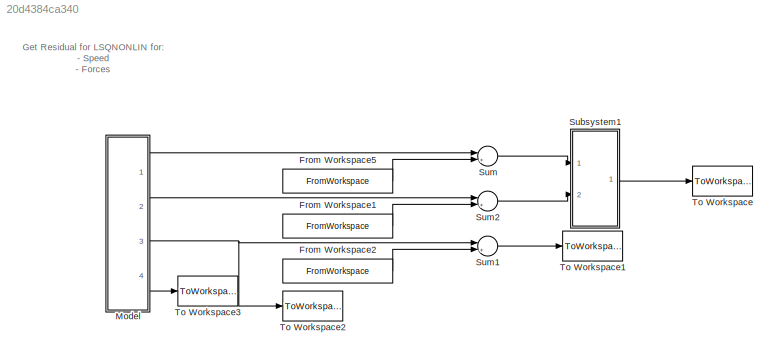
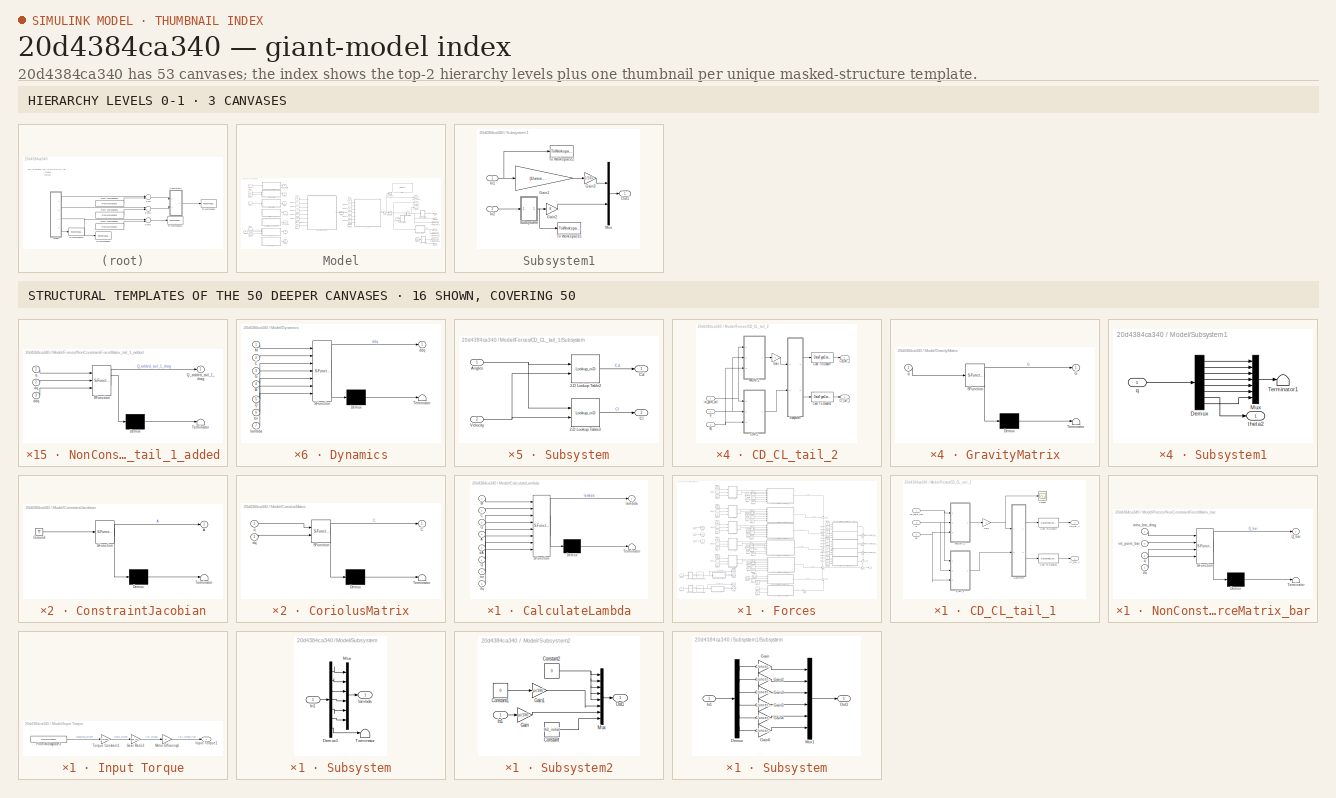
[diagram: thumbnail index - top-2 hierarchy levels (3 canvases) + 16 structural-template representatives of the remaining 50 canvases]
MODEL slx_20d4384ca340
KIND model
CONFIG AbsTol = auto
CONFIG EnableMultiTasking = off
CONFIG FixedStep = 0.001
CONFIG MaxStep = auto
CONFIG MinStep = auto
CONFIG RelTol = 1e-3
CONFIG SampleTimeConstraint = Unconstrained
CONFIG SolverName = ode4
CONFIG StartTime = 0.0
CONFIG StopTime = 1.5
BLOCK [FromWorkspace] From Workspace1
  Interpolate = off
  OutputAfterFinalValue = Holding final value
  SampleTime = 0.001
  VariableName = Data_forces_for_model
BLOCK [FromWorkspace] From Workspace2
  Interpolate = off
  OutputAfterFinalValue = Holding final value
  SampleTime = 0.001
  VariableName = Data_position_for_model
BLOCK [FromWorkspace] From Workspace5
  Interpolate = off
  OutputAfterFinalValue = Holding final value
  SampleTime = 0.001
  VariableName = Data_speed_for_model
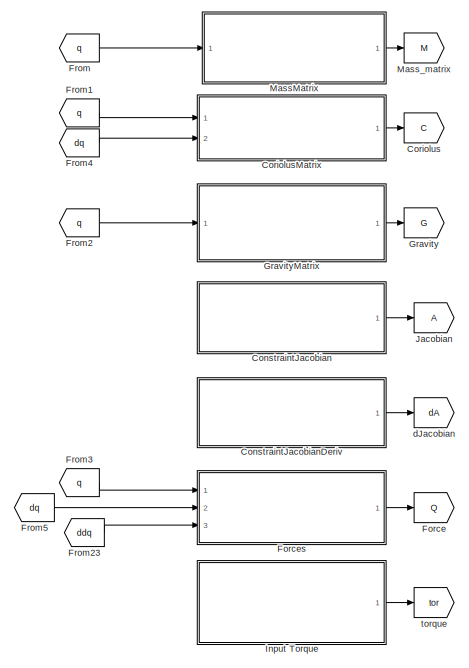
[diagram: Model - part 1/2, left side, full height]
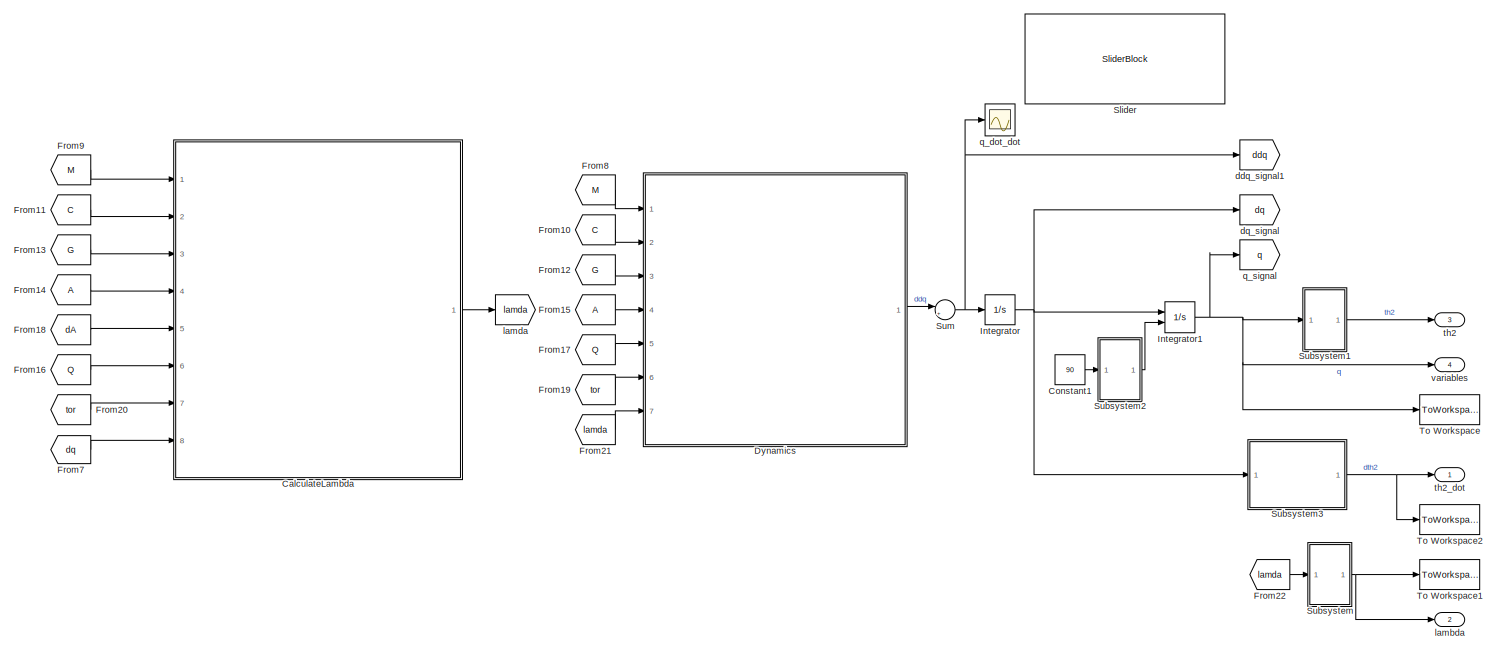
[diagram: Model - part 2/2, most of the canvas]
BLOCK [SubSystem] Model
  Ports = [0, 4]
  RequestExecContextInheritance = off
BLOCK [SubSystem] Model/CalculateLambda
  ErrorFcn = Stateflow.Translate.translate
  PermitHierarchicalResolution = ExplicitOnly
  Ports = [8, 1]
  RequestExecContextInheritance = off
  SFBlockType = MATLAB Function
  TreatAsAtomicUnit = on
BLOCK [Demux] Model/CalculateLambda/ Demux 
  Outputs = 1
  Ports = [1, 1]
BLOCK [S-Function] Model/CalculateLambda/ SFunction 
  EnableBusSupport = on
  FunctionName = sf_sfun
  PortCounts = [8 2]
  Ports = [8, 2]
  SFcnIsStateOwnerBlock = off
  SFunctionDeploymentMode = off
  Tag = Stateflow S-Function 6
BLOCK [Terminator] Model/CalculateLambda/ Terminator 
BLOCK [Inport] Model/CalculateLambda/A
  Port = 4
BLOCK [Inport] Model/CalculateLambda/C
  Port = 2
BLOCK [Inport] Model/CalculateLambda/G
  Port = 3
BLOCK [Inport] Model/CalculateLambda/M
BLOCK [Inport] Model/CalculateLambda/Q
  Port = 6
BLOCK [Inport] Model/CalculateLambda/dA
  Port = 5
BLOCK [Inport] Model/CalculateLambda/dq
  Port = 8
BLOCK [Outport] Model/CalculateLambda/lambda
BLOCK [Inport] Model/CalculateLambda/tor
  Port = 7
BLOCK [Constant] Model/Constant1
  Value = 90
BLOCK [SubSystem] Model/ConstraintJacobian
  ErrorFcn = Stateflow.Translate.translate
  PermitHierarchicalResolution = ExplicitOnly
  Ports = [0, 1]
  RequestExecContextInheritance = off
  SFBlockType = MATLAB Function
  TreatAsAtomicUnit = on
BLOCK [Demux] Model/ConstraintJacobian/ Demux 
  Outputs = 1
  Ports = [1, 1]
BLOCK [Ground] Model/ConstraintJacobian/ Ground 
BLOCK [S-Function] Model/ConstraintJacobian/ SFunction 
  EnableBusSupport = on
  FunctionName = sf_sfun
  PortCounts = [1 2]
  Ports = [1, 2]
  SFcnIsStateOwnerBlock = off
  SFunctionDeploymentMode = off
  Tag = Stateflow S-Function 4
BLOCK [Terminator] Model/ConstraintJacobian/ Terminator 
BLOCK [Outport] Model/ConstraintJacobian/A
BLOCK [SubSystem] Model/ConstraintJacobianDeriv
  ErrorFcn = Stateflow.Translate.translate
  PermitHierarchicalResolution = ExplicitOnly
  Ports = [0, 1]
  RequestExecContextInheritance = off
  SFBlockType = MATLAB Function
  TreatAsAtomicUnit = on
BLOCK [Demux] Model/ConstraintJacobianDeriv/ Demux 
  Outputs = 1
  Ports = [1, 1]
BLOCK [Ground] Model/ConstraintJacobianDeriv/ Ground 
BLOCK [S-Function] Model/ConstraintJacobianDeriv/ SFunction 
  EnableBusSupport = on
  FunctionName = sf_sfun
  PortCounts = [1 2]
  Ports = [1, 2]
  SFcnIsStateOwnerBlock = off
  SFunctionDeploymentMode = off
  Tag = Stateflow S-Function 5
BLOCK [Terminator] Model/ConstraintJacobianDeriv/ Terminator 
BLOCK [Outport] Model/ConstraintJacobianDeriv/dA
BLOCK [Goto] Model/Coriolus
  GotoTag = C
BLOCK [SubSystem] Model/CoriolusMatrix
  ErrorFcn = Stateflow.Translate.translate
  PermitHierarchicalResolution = ExplicitOnly
  Ports = [2, 1]
  RequestExecContextInheritance = off
  SFBlockType = MATLAB Function
  TreatAsAtomicUnit = on
BLOCK [Demux] Model/CoriolusMatrix/ Demux 
  Outputs = 1
  Ports = [1, 1]
BLOCK [S-Function] Model/CoriolusMatrix/ SFunction 
  EnableBusSupport = on
  FunctionName = sf_sfun
  Parameters = B_cg_H,B_con_H,B_con_L,ITail,M_cg_H,M_cg_L,M_cg_W,Mb,Mm,Mt,T_cg_H
  PortCounts = [2 2]
  Ports = [2, 2]
  SFcnIsStateOwnerBlock = off
  SFunctionDeploymentMode = off
  Tag = Stateflow S-Function 1
BLOCK [Terminator] Model/CoriolusMatrix/ Terminator 
BLOCK [Outport] Model/CoriolusMatrix/C
BLOCK [Inport] Model/CoriolusMatrix/dq
  Port = 2
BLOCK [Inport] Model/CoriolusMatrix/q
BLOCK [SubSystem] Model/Dynamics
  ErrorFcn = Stateflow.Translate.translate
  PermitHierarchicalResolution = ExplicitOnly
  Ports = [7, 1]
  RequestExecContextInheritance = off
  SFBlockType = MATLAB Function
  TreatAsAtomicUnit = on
BLOCK [Demux] Model/Dynamics/ Demux 
  Outputs = 1
  Ports = [1, 1]
BLOCK [S-Function] Model/Dynamics/ SFunction 
  EnableBusSupport = on
  FunctionName = sf_sfun
  PortCounts = [7 2]
  Ports = [7, 2]
  SFcnIsStateOwnerBlock = off
  SFunctionDeploymentMode = off
  Tag = Stateflow S-Function 7
BLOCK [Terminator] Model/Dynamics/ Terminator 
BLOCK [Inport] Model/Dynamics/A
  Port = 4
BLOCK [Inport] Model/Dynamics/C
  Port = 2
BLOCK [Inport] Model/Dynamics/G
  Port = 3
BLOCK [Inport] Model/Dynamics/M
BLOCK [Inport] Model/Dynamics/Q
  Port = 5
BLOCK [Outport] Model/Dynamics/ddq
BLOCK [Inport] Model/Dynamics/lambda
  Port = 7
BLOCK [Inport] Model/Dynamics/tor
  Port = 6
BLOCK [Goto] Model/Force
  GotoTag = Q
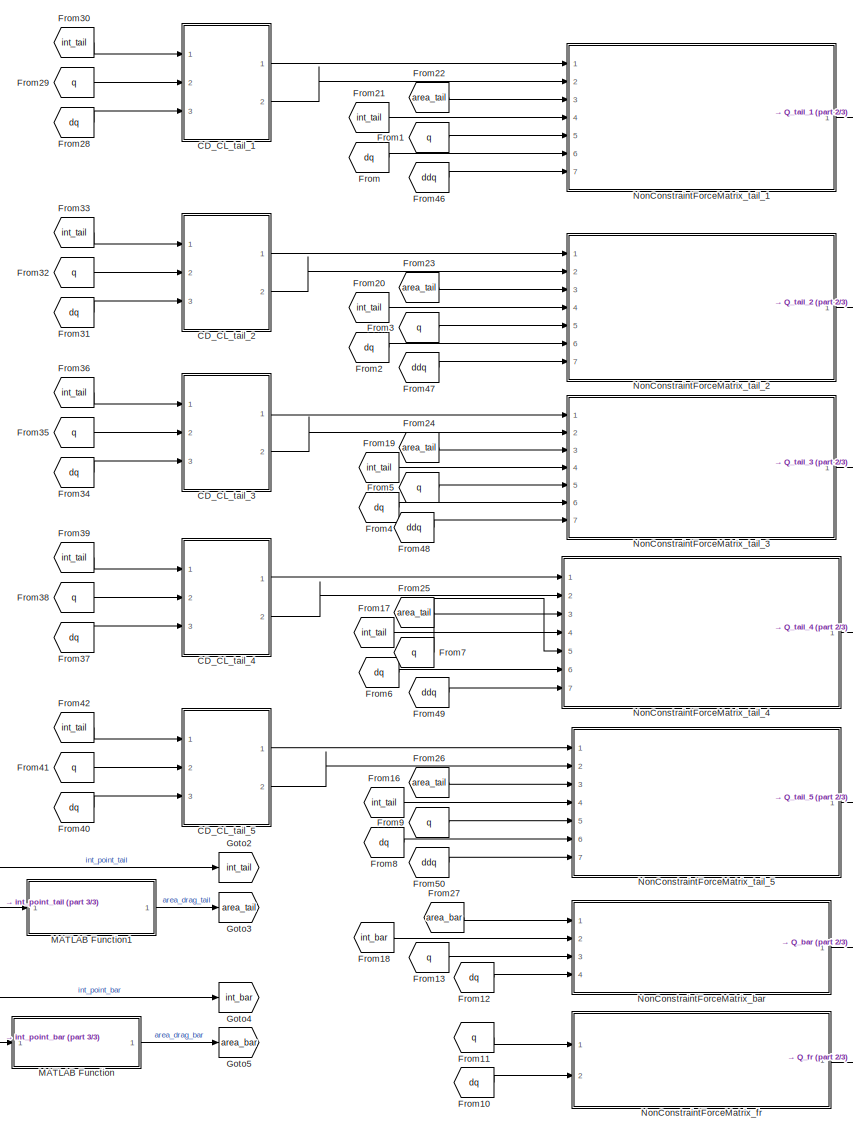
[diagram: Model/Forces - part 1/3, center side, full height]
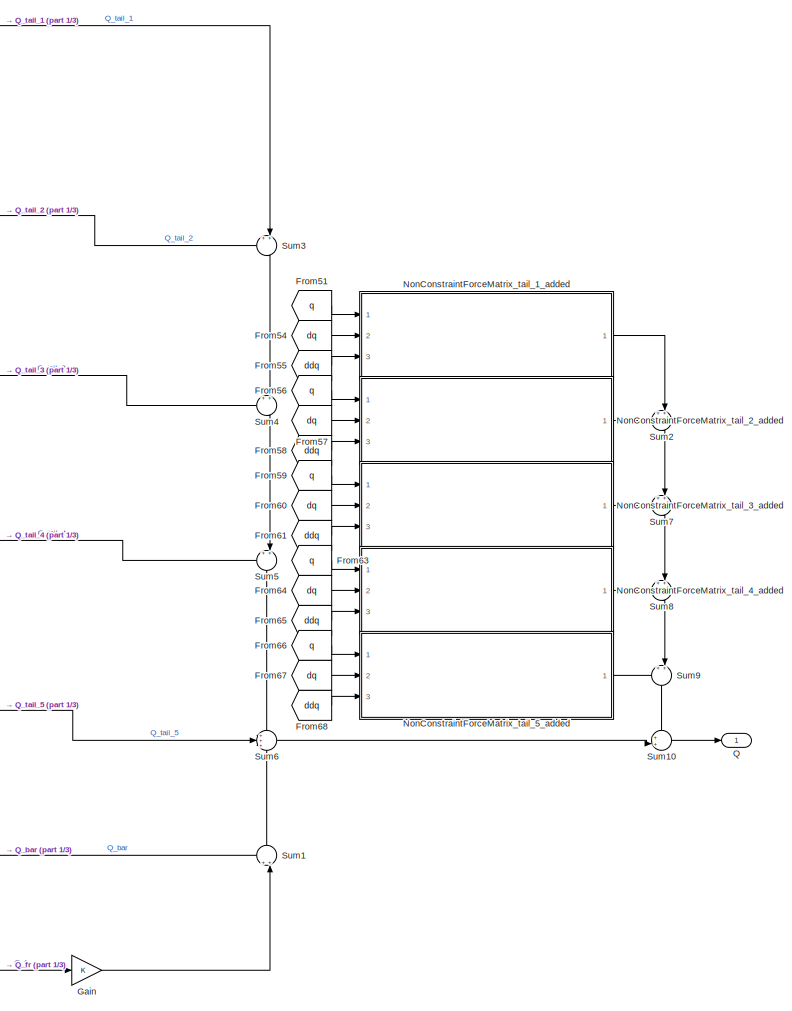
[diagram: Model/Forces - part 2/3, right side, full height]
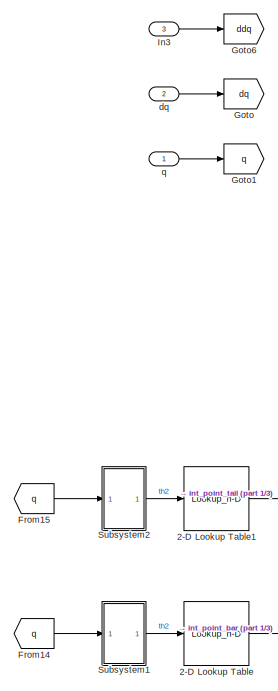
[diagram: Model/Forces - part 3/3, bottom left region]
BLOCK [SubSystem] Model/Forces
  Ports = [3, 1]
  RequestExecContextInheritance = off
BLOCK [Lookup_n-D] Model/Forces/2-D Lookup Table
  BreakpointsForDimension1 = linspace(0,deg2rad(90),90)
  BreakpointsForDimension2 = [1:3]
  InputPortMap = u0
  InternalRulePriority = Speed
  LookupTableObject = bar_int_table
  NumberOfTableDimensions = 1
  Ports = [1, 1]
  RndMeth = Simplest
  Table = int_point_bar
BLOCK [Lookup_n-D] Model/Forces/2-D Lookup Table1
  BreakpointsForDimension1 = linspace(0,deg2rad(90),90)
  BreakpointsForDimension2 = [1:3]
  InputPortMap = u0
  InternalRulePriority = Speed
  LookupTableObject = bar_int_table
  NumberOfTableDimensions = 1
  Ports = [1, 1]
  RndMeth = Simplest
  Table = int_point_tail
BLOCK [SubSystem] Model/Forces/CD_CL_tail_1
  Ports = [3, 2]
  RequestExecContextInheritance = off
BLOCK [DataTypeConversion] Model/Forces/CD_CL_tail_1/Cast To Double
  OutDataTypeStr = double
  RndMeth = Floor
  SaturateOnIntegerOverflow = off
BLOCK [DataTypeConversion] Model/Forces/CD_CL_tail_1/Cast To Double1
  OutDataTypeStr = double
  RndMeth = Floor
  SaturateOnIntegerOverflow = off
BLOCK [Outport] Model/Forces/CD_CL_tail_1/Cd_tail_1
BLOCK [Outport] Model/Forces/CD_CL_tail_1/Cl_tail_1
  Port = 2
BLOCK [Gain] Model/Forces/CD_CL_tail_1/Gain
  Gain = -1
BLOCK [Scope] Model/Forces/CD_CL_tail_1/Scope1
  Floating = off
  NumInputPorts = 1
  Ports = [1]
  ScopeSpecificationString = Simulink.scopes.TimeScopeBlockCfg('CurrentConfiguration', extmgr.ConfigurationSet(extmgr.Configuration('Core','General UI',true),extmgr.Configuration('Core','Source UI',true),extmgr.Configuration('Sources','WiredSimulink',true,'DataLoggingVariableName','ScopeData3'),extmgr.Configuration('Visuals','Time Domain',true,'SerializedDisplays',{struct('MinYLimReal','-1.96336','MaxYLimReal','1.96314','YLab...<+1435ch>
BLOCK [SubSystem] Model/Forces/CD_CL_tail_1/Subsystem
  Ports = [2, 2]
  RequestExecContextInheritance = off
BLOCK [Lookup_n-D] Model/Forces/CD_CL_tail_1/Subsystem/2-D Lookup Table2
  BreakpointsForDimension1 = deg2rad([0 15 30 45 60 75])
  BreakpointsForDimension2 = [10 20 30]
  InputPortMap = u0,u1
  InternalRulePriority = Speed
  LookupTableObject = bar_int_table
  Ports = [2, 1]
  RndMeth = Simplest
  Table = cd_table
BLOCK [Lookup_n-D] Model/Forces/CD_CL_tail_1/Subsystem/2-D Lookup Table3
  BreakpointsForDimension1 = deg2rad([0 15 30 45 60 75])
  BreakpointsForDimension2 = [10 20 30]
  InputPortMap = u0,u1
  InternalRulePriority = Speed
  LookupTableObject = bar_int_table
  Ports = [2, 1]
  RndMeth = Simplest
  Table = cl_table
BLOCK [Inport] Model/Forces/CD_CL_tail_1/Subsystem/Angles
BLOCK [Outport] Model/Forces/CD_CL_tail_1/Subsystem/Cd
BLOCK [Outport] Model/Forces/CD_CL_tail_1/Subsystem/Cl
  Port = 2
BLOCK [Inport] Model/Forces/CD_CL_tail_1/Subsystem/Velocity
  Port = 2
BLOCK [SubSystem] Model/Forces/CD_CL_tail_1/aoa_tail_1
  ErrorFcn = Stateflow.Translate.translate
  PermitHierarchicalResolution = ExplicitOnly
  Ports = [3, 1]
  RequestExecContextInheritance = off
  SFBlockType = MATLAB Function
  TreatAsAtomicUnit = on
BLOCK [Demux] Model/Forces/CD_CL_tail_1/aoa_tail_1/ Demux 
  Outputs = 1
  Ports = [1, 1]
BLOCK [S-Function] Model/Forces/CD_CL_tail_1/aoa_tail_1/ SFunction 
  EnableBusSupport = on
  FunctionName = sf_sfun
  Parameters = B_con_H,B_con_L,M_cg_H,M_cg_L,M_cg_W,T_fur_gap,T_length,bar_len,psi3,windspeed
  PortCounts = [3 2]
  Ports = [3, 2]
  SFcnIsStateOwnerBlock = off
  SFunctionDeploymentMode = off
  Tag = Stateflow S-Function 20
BLOCK [Terminator] Model/Forces/CD_CL_tail_1/aoa_tail_1/ Terminator 
BLOCK [Outport] Model/Forces/CD_CL_tail_1/aoa_tail_1/aoa_tail_1
BLOCK [Inport] Model/Forces/CD_CL_tail_1/aoa_tail_1/dq
  Port = 3
BLOCK [Inport] Model/Forces/CD_CL_tail_1/aoa_tail_1/int_point_tail
BLOCK [Inport] Model/Forces/CD_CL_tail_1/aoa_tail_1/q
  Port = 2
BLOCK [Inport] Model/Forces/CD_CL_tail_1/dq
  Port = 3
BLOCK [Inport] Model/Forces/CD_CL_tail_1/int_point_tail
BLOCK [Inport] Model/Forces/CD_CL_tail_1/q
  Port = 2
BLOCK [SubSystem] Model/Forces/CD_CL_tail_1/v_tail_1
  ErrorFcn = Stateflow.Translate.translate
  PermitHierarchicalResolution = ExplicitOnly
  Ports = [3, 1]
  RequestExecContextInheritance = off
  SFBlockType = MATLAB Function
  TreatAsAtomicUnit = on
BLOCK [Demux] Model/Forces/CD_CL_tail_1/v_tail_1/ Demux 
  Outputs = 1
  Ports = [1, 1]
BLOCK [S-Function] Model/Forces/CD_CL_tail_1/v_tail_1/ SFunction 
  EnableBusSupport = on
  FunctionName = sf_sfun
  Parameters = B_con_H,B_con_L,M_cg_H,M_cg_L,M_cg_W,T_fur_gap,T_length,bar_len,psi3,windspeed
  PortCounts = [3 2]
  Ports = [3, 2]
  SFcnIsStateOwnerBlock = off
  SFunctionDeploymentMode = off
  Tag = Stateflow S-Function 19
BLOCK [Terminator] Model/Forces/CD_CL_tail_1/v_tail_1/ Terminator 
BLOCK [Inport] Model/Forces/CD_CL_tail_1/v_tail_1/dq
  Port = 3
BLOCK [Inport] Model/Forces/CD_CL_tail_1/v_tail_1/int_point_tail
BLOCK [Inport] Model/Forces/CD_CL_tail_1/v_tail_1/q
  Port = 2
BLOCK [Outport] Model/Forces/CD_CL_tail_1/v_tail_1/v_tail_1_speed
BLOCK [SubSystem] Model/Forces/CD_CL_tail_2
  Ports = [3, 2]
  RequestExecContextInheritance = off
BLOCK [DataTypeConversion] Model/Forces/CD_CL_tail_2/Cast To Double
  OutDataTypeStr = double
  RndMeth = Floor
  SaturateOnIntegerOverflow = off
BLOCK [DataTypeConversion] Model/Forces/CD_CL_tail_2/Cast To Double1
  OutDataTypeStr = double
  RndMeth = Floor
  SaturateOnIntegerOverflow = off
BLOCK [Outport] Model/Forces/CD_CL_tail_2/Cd_tail_2
BLOCK [Outport] Model/Forces/CD_CL_tail_2/Cl_tail_2
  Port = 2
BLOCK [Gain] Model/Forces/CD_CL_tail_2/Gain
  Gain = -1
BLOCK [SubSystem] Model/Forces/CD_CL_tail_2/Subsystem
  Ports = [2, 2]
  RequestExecContextInheritance = off
BLOCK [Lookup_n-D] Model/Forces/CD_CL_tail_2/Subsystem/2-D Lookup Table2
  BreakpointsForDimension1 = deg2rad([0 15 30 45 60 75])
  BreakpointsForDimension2 = [10 20 30]
  InputPortMap = u0,u1
  InternalRulePriority = Speed
  LookupTableObject = bar_int_table
  Ports = [2, 1]
  RndMeth = Simplest
  Table = cd_table
BLOCK [Lookup_n-D] Model/Forces/CD_CL_tail_2/Subsystem/2-D Lookup Table3
  BreakpointsForDimension1 = deg2rad([0 15 30 45 60 75])
  BreakpointsForDimension2 = [10 20 30]
  InputPortMap = u0,u1
  InternalRulePriority = Speed
  LookupTableObject = bar_int_table
  Ports = [2, 1]
  RndMeth = Simplest
  Table = cl_table
BLOCK [Inport] Model/Forces/CD_CL_tail_2/Subsystem/Angles
BLOCK [Outport] Model/Forces/CD_CL_tail_2/Subsystem/Cd
BLOCK [Outport] Model/Forces/CD_CL_tail_2/Subsystem/Cl
  Port = 2
BLOCK [Inport] Model/Forces/CD_CL_tail_2/Subsystem/Velocity
  Port = 2
BLOCK [SubSystem] Model/Forces/CD_CL_tail_2/aoa_tail_2
  ErrorFcn = Stateflow.Translate.translate
  PermitHierarchicalResolution = ExplicitOnly
  Ports = [3, 1]
  RequestExecContextInheritance = off
  SFBlockType = MATLAB Function
  TreatAsAtomicUnit = on
BLOCK [Demux] Model/Forces/CD_CL_tail_2/aoa_tail_2/ Demux 
  Outputs = 1
  Ports = [1, 1]
BLOCK [S-Function] Model/Forces/CD_CL_tail_2/aoa_tail_2/ SFunction 
  EnableBusSupport = on
  FunctionName = sf_sfun
  Parameters = B_con_H,B_con_L,M_cg_H,M_cg_L,M_cg_W,T_fur_gap,T_length,bar_len,psi3,windspeed
  PortCounts = [3 2]
  Ports = [3, 2]
  SFcnIsStateOwnerBlock = off
  SFunctionDeploymentMode = off
  Tag = Stateflow S-Function 22
BLOCK [Terminator] Model/Forces/CD_CL_tail_2/aoa_tail_2/ Terminator 
BLOCK [Outport] Model/Forces/CD_CL_tail_2/aoa_tail_2/aoa_tail_2
BLOCK [Inport] Model/Forces/CD_CL_tail_2/aoa_tail_2/dq
  Port = 3
BLOCK [Inport] Model/Forces/CD_CL_tail_2/aoa_tail_2/int_point_tail
BLOCK [Inport] Model/Forces/CD_CL_tail_2/aoa_tail_2/q
  Port = 2
BLOCK [Inport] Model/Forces/CD_CL_tail_2/dq
  Port = 3
BLOCK [Inport] Model/Forces/CD_CL_tail_2/int_point_tail
BLOCK [Inport] Model/Forces/CD_CL_tail_2/q
  Port = 2
BLOCK [SubSystem] Model/Forces/CD_CL_tail_2/v_tail_2
  ErrorFcn = Stateflow.Translate.translate
  PermitHierarchicalResolution = ExplicitOnly
  Ports = [3, 1]
  RequestExecContextInheritance = off
  SFBlockType = MATLAB Function
  TreatAsAtomicUnit = on
BLOCK [Demux] Model/Forces/CD_CL_tail_2/v_tail_2/ Demux 
  Outputs = 1
  Ports = [1, 1]
BLOCK [S-Function] Model/Forces/CD_CL_tail_2/v_tail_2/ SFunction 
  EnableBusSupport = on
  FunctionName = sf_sfun
  Parameters = B_con_H,B_con_L,M_cg_H,M_cg_L,M_cg_W,T_fur_gap,T_length,bar_len,psi3,windspeed
  PortCounts = [3 2]
  Ports = [3, 2]
  SFcnIsStateOwnerBlock = off
  SFunctionDeploymentMode = off
  Tag = Stateflow S-Function 21
BLOCK [Terminator] Model/Forces/CD_CL_tail_2/v_tail_2/ Terminator 
BLOCK [Inport] Model/Forces/CD_CL_tail_2/v_tail_2/dq
  Port = 3
BLOCK [Inport] Model/Forces/CD_CL_tail_2/v_tail_2/int_point_tail
BLOCK [Inport] Model/Forces/CD_CL_tail_2/v_tail_2/q
  Port = 2
BLOCK [Outport] Model/Forces/CD_CL_tail_2/v_tail_2/v_tail_2_speed
BLOCK [SubSystem] Model/Forces/CD_CL_tail_3
  Ports = [3, 2]
  RequestExecContextInheritance = off
BLOCK [DataTypeConversion] Model/Forces/CD_CL_tail_3/Cast To Double
  OutDataTypeStr = double
  RndMeth = Floor
  SaturateOnIntegerOverflow = off
BLOCK [DataTypeConversion] Model/Forces/CD_CL_tail_3/Cast To Double1
  OutDataTypeStr = double
  RndMeth = Floor
  SaturateOnIntegerOverflow = off
BLOCK [Outport] Model/Forces/CD_CL_tail_3/Cd_tail_3
BLOCK [Outport] Model/Forces/CD_CL_tail_3/Cl_tail_3
  Port = 2
BLOCK [Gain] Model/Forces/CD_CL_tail_3/Gain
  Gain = -1
BLOCK [SubSystem] Model/Forces/CD_CL_tail_3/Subsystem
  Ports = [2, 2]
  RequestExecContextInheritance = off
BLOCK [Lookup_n-D] Model/Forces/CD_CL_tail_3/Subsystem/2-D Lookup Table2
  BreakpointsForDimension1 = deg2rad([0 15 30 45 60 75])
  BreakpointsForDimension2 = [10 20 30]
  InputPortMap = u0,u1
  InternalRulePriority = Speed
  LookupTableObject = bar_int_table
  Ports = [2, 1]
  RndMeth = Simplest
  Table = cd_table
BLOCK [Lookup_n-D] Model/Forces/CD_CL_tail_3/Subsystem/2-D Lookup Table3
  BreakpointsForDimension1 = deg2rad([0 15 30 45 60 75])
  BreakpointsForDimension2 = [10 20 30]
  InputPortMap = u0,u1
  InternalRulePriority = Speed
  LookupTableObject = bar_int_table
  Ports = [2, 1]
  RndMeth = Simplest
  Table = cl_table
BLOCK [Inport] Model/Forces/CD_CL_tail_3/Subsystem/Angles
BLOCK [Outport] Model/Forces/CD_CL_tail_3/Subsystem/Cd
BLOCK [Outport] Model/Forces/CD_CL_tail_3/Subsystem/Cl
  Port = 2
BLOCK [Inport] Model/Forces/CD_CL_tail_3/Subsystem/Velocity
  Port = 2
BLOCK [SubSystem] Model/Forces/CD_CL_tail_3/aoa_tail_3
  ErrorFcn = Stateflow.Translate.translate
  PermitHierarchicalResolution = ExplicitOnly
  Ports = [3, 1]
  RequestExecContextInheritance = off
  SFBlockType = MATLAB Function
  TreatAsAtomicUnit = on
BLOCK [Demux] Model/Forces/CD_CL_tail_3/aoa_tail_3/ Demux 
  Outputs = 1
  Ports = [1, 1]
BLOCK [S-Function] Model/Forces/CD_CL_tail_3/aoa_tail_3/ SFunction 
  EnableBusSupport = on
  FunctionName = sf_sfun
  Parameters = B_con_H,B_con_L,M_cg_H,M_cg_L,M_cg_W,T_fur_gap,T_length,bar_len,psi3,windspeed
  PortCounts = [3 2]
  Ports = [3, 2]
  SFcnIsStateOwnerBlock = off
  SFunctionDeploymentMode = off
  Tag = Stateflow S-Function 24
BLOCK [Terminator] Model/Forces/CD_CL_tail_3/aoa_tail_3/ Terminator 
BLOCK [Outport] Model/Forces/CD_CL_tail_3/aoa_tail_3/aoa_tail_3
BLOCK [Inport] Model/Forces/CD_CL_tail_3/aoa_tail_3/dq
  Port = 3
BLOCK [Inport] Model/Forces/CD_CL_tail_3/aoa_tail_3/int_point_tail
BLOCK [Inport] Model/Forces/CD_CL_tail_3/aoa_tail_3/q
  Port = 2
BLOCK [Inport] Model/Forces/CD_CL_tail_3/dq
  Port = 3
BLOCK [Inport] Model/Forces/CD_CL_tail_3/int_point_tail
BLOCK [Inport] Model/Forces/CD_CL_tail_3/q
  Port = 2
BLOCK [SubSystem] Model/Forces/CD_CL_tail_3/v_tail_3
  ErrorFcn = Stateflow.Translate.translate
  PermitHierarchicalResolution = ExplicitOnly
  Ports = [3, 1]
  RequestExecContextInheritance = off
  SFBlockType = MATLAB Function
  TreatAsAtomicUnit = on
BLOCK [Demux] Model/Forces/CD_CL_tail_3/v_tail_3/ Demux 
  Outputs = 1
  Ports = [1, 1]
BLOCK [S-Function] Model/Forces/CD_CL_tail_3/v_tail_3/ SFunction 
  EnableBusSupport = on
  FunctionName = sf_sfun
  Parameters = B_con_H,B_con_L,M_cg_H,M_cg_L,M_cg_W,T_fur_gap,T_length,bar_len,psi3,windspeed
  PortCounts = [3 2]
  Ports = [3, 2]
  SFcnIsStateOwnerBlock = off
  SFunctionDeploymentMode = off
  Tag = Stateflow S-Function 23
BLOCK [Terminator] Model/Forces/CD_CL_tail_3/v_tail_3/ Terminator 
BLOCK [Inport] Model/Forces/CD_CL_tail_3/v_tail_3/dq
  Port = 3
BLOCK [Inport] Model/Forces/CD_CL_tail_3/v_tail_3/int_point_tail
BLOCK [Inport] Model/Forces/CD_CL_tail_3/v_tail_3/q
  Port = 2
BLOCK [Outport] Model/Forces/CD_CL_tail_3/v_tail_3/v_tail_3_speed
BLOCK [SubSystem] Model/Forces/CD_CL_tail_4
  Ports = [3, 2]
  RequestExecContextInheritance = off
BLOCK [DataTypeConversion] Model/Forces/CD_CL_tail_4/Cast To Double
  OutDataTypeStr = double
  RndMeth = Floor
  SaturateOnIntegerOverflow = off
BLOCK [DataTypeConversion] Model/Forces/CD_CL_tail_4/Cast To Double1
  OutDataTypeStr = double
  RndMeth = Floor
  SaturateOnIntegerOverflow = off
BLOCK [Outport] Model/Forces/CD_CL_tail_4/Cd_tail_4
  NameLocation = right
BLOCK [Outport] Model/Forces/CD_CL_tail_4/Cl_tail_4
  NameLocation = right
  Port = 2
BLOCK [Gain] Model/Forces/CD_CL_tail_4/Gain
  Gain = -1
BLOCK [SubSystem] Model/Forces/CD_CL_tail_4/Subsystem
  Ports = [2, 2]
  RequestExecContextInheritance = off
BLOCK [Lookup_n-D] Model/Forces/CD_CL_tail_4/Subsystem/2-D Lookup Table2
  BreakpointsForDimension1 = deg2rad([0 15 30 45 60 75])
  BreakpointsForDimension2 = [10 20 30]
  InputPortMap = u0,u1
  InternalRulePriority = Speed
  LookupTableObject = bar_int_table
  Ports = [2, 1]
  RndMeth = Simplest
  Table = cd_table
BLOCK [Lookup_n-D] Model/Forces/CD_CL_tail_4/Subsystem/2-D Lookup Table3
  BreakpointsForDimension1 = deg2rad([0 15 30 45 60 75])
  BreakpointsForDimension2 = [10 20 30]
  InputPortMap = u0,u1
  InternalRulePriority = Speed
  LookupTableObject = bar_int_table
  Ports = [2, 1]
  RndMeth = Simplest
  Table = cl_table
BLOCK [Inport] Model/Forces/CD_CL_tail_4/Subsystem/Angles
BLOCK [Outport] Model/Forces/CD_CL_tail_4/Subsystem/Cd
BLOCK [Outport] Model/Forces/CD_CL_tail_4/Subsystem/Cl
  Port = 2
BLOCK [Inport] Model/Forces/CD_CL_tail_4/Subsystem/Velocity
  Port = 2
BLOCK [SubSystem] Model/Forces/CD_CL_tail_4/aoa_tail_4
  ErrorFcn = Stateflow.Translate.translate
  PermitHierarchicalResolution = ExplicitOnly
  Ports = [3, 1]
  RequestExecContextInheritance = off
  SFBlockType = MATLAB Function
  TreatAsAtomicUnit = on
BLOCK [Demux] Model/Forces/CD_CL_tail_4/aoa_tail_4/ Demux 
  Outputs = 1
  Ports = [1, 1]
BLOCK [S-Function] Model/Forces/CD_CL_tail_4/aoa_tail_4/ SFunction 
  EnableBusSupport = on
  FunctionName = sf_sfun
  Parameters = B_con_H,B_con_L,M_cg_H,M_cg_L,M_cg_W,T_fur_gap,T_length,bar_len,psi3,windspeed
  PortCounts = [3 2]
  Ports = [3, 2]
  SFcnIsStateOwnerBlock = off
  SFunctionDeploymentMode = off
  Tag = Stateflow S-Function 26
BLOCK [Terminator] Model/Forces/CD_CL_tail_4/aoa_tail_4/ Terminator 
BLOCK [Outport] Model/Forces/CD_CL_tail_4/aoa_tail_4/aoa_tail_4
BLOCK [Inport] Model/Forces/CD_CL_tail_4/aoa_tail_4/dq
  Port = 3
BLOCK [Inport] Model/Forces/CD_CL_tail_4/aoa_tail_4/int_point_tail
BLOCK [Inport] Model/Forces/CD_CL_tail_4/aoa_tail_4/q
  Port = 2
BLOCK [Inport] Model/Forces/CD_CL_tail_4/dq
  NameLocation = left
  Port = 3
BLOCK [Inport] Model/Forces/CD_CL_tail_4/int_point_tail
BLOCK [Inport] Model/Forces/CD_CL_tail_4/q
  Port = 2
BLOCK [SubSystem] Model/Forces/CD_CL_tail_4/v_tail_4
  ErrorFcn = Stateflow.Translate.translate
  PermitHierarchicalResolution = ExplicitOnly
  Ports = [3, 1]
  RequestExecContextInheritance = off
  SFBlockType = MATLAB Function
  TreatAsAtomicUnit = on
BLOCK [Demux] Model/Forces/CD_CL_tail_4/v_tail_4/ Demux 
  Outputs = 1
  Ports = [1, 1]
BLOCK [S-Function] Model/Forces/CD_CL_tail_4/v_tail_4/ SFunction 
  EnableBusSupport = on
  FunctionName = sf_sfun
  Parameters = B_con_H,B_con_L,M_cg_H,M_cg_L,M_cg_W,T_fur_gap,T_length,bar_len,psi3,windspeed
  PortCounts = [3 2]
  Ports = [3, 2]
  SFcnIsStateOwnerBlock = off
  SFunctionDeploymentMode = off
  Tag = Stateflow S-Function 25
BLOCK [Terminator] Model/Forces/CD_CL_tail_4/v_tail_4/ Terminator 
BLOCK [Inport] Model/Forces/CD_CL_tail_4/v_tail_4/dq
  Port = 3
BLOCK [Inport] Model/Forces/CD_CL_tail_4/v_tail_4/int_point_tail
BLOCK [Inport] Model/Forces/CD_CL_tail_4/v_tail_4/q
  Port = 2
BLOCK [Outport] Model/Forces/CD_CL_tail_4/v_tail_4/v_tail_4_speed
BLOCK [SubSystem] Model/Forces/CD_CL_tail_5
  Ports = [3, 2]
  RequestExecContextInheritance = off
BLOCK [DataTypeConversion] Model/Forces/CD_CL_tail_5/Cast To Double
  OutDataTypeStr = double
  RndMeth = Floor
  SaturateOnIntegerOverflow = off
BLOCK [DataTypeConversion] Model/Forces/CD_CL_tail_5/Cast To Double1
  OutDataTypeStr = double
  RndMeth = Floor
  SaturateOnIntegerOverflow = off
BLOCK [Outport] Model/Forces/CD_CL_tail_5/Cd_tail_5
  NameLocation = right
BLOCK [Outport] Model/Forces/CD_CL_tail_5/Cl_tail_5
  NameLocation = right
  Port = 2
BLOCK [Gain] Model/Forces/CD_CL_tail_5/Gain
  Gain = -1
BLOCK [SubSystem] Model/Forces/CD_CL_tail_5/Subsystem
  Ports = [2, 2]
  RequestExecContextInheritance = off
BLOCK [Lookup_n-D] Model/Forces/CD_CL_tail_5/Subsystem/2-D Lookup Table2
  BreakpointsForDimension1 = deg2rad([0 15 30 45 60 75])
  BreakpointsForDimension2 = [10 20 30]
  InputPortMap = u0,u1
  InternalRulePriority = Speed
  LookupTableObject = bar_int_table
  Ports = [2, 1]
  RndMeth = Simplest
  Table = cd_table
BLOCK [Lookup_n-D] Model/Forces/CD_CL_tail_5/Subsystem/2-D Lookup Table3
  BreakpointsForDimension1 = deg2rad([0 15 30 45 60 75])
  BreakpointsForDimension2 = [10 20 30]
  InputPortMap = u0,u1
  InternalRulePriority = Speed
  LookupTableObject = bar_int_table
  Ports = [2, 1]
  RndMeth = Simplest
  Table = cl_table
BLOCK [Inport] Model/Forces/CD_CL_tail_5/Subsystem/Angles
BLOCK [Outport] Model/Forces/CD_CL_tail_5/Subsystem/Cd
BLOCK [Outport] Model/Forces/CD_CL_tail_5/Subsystem/Cl
  Port = 2
BLOCK [Inport] Model/Forces/CD_CL_tail_5/Subsystem/Velocity
  Port = 2
BLOCK [SubSystem] Model/Forces/CD_CL_tail_5/aoa_tail_5
  ErrorFcn = Stateflow.Translate.translate
  PermitHierarchicalResolution = ExplicitOnly
  Ports = [3, 1]
  RequestExecContextInheritance = off
  SFBlockType = MATLAB Function
  TreatAsAtomicUnit = on
BLOCK [Demux] Model/Forces/CD_CL_tail_5/aoa_tail_5/ Demux 
  Outputs = 1
  Ports = [1, 1]
BLOCK [S-Function] Model/Forces/CD_CL_tail_5/aoa_tail_5/ SFunction 
  EnableBusSupport = on
  FunctionName = sf_sfun
  Parameters = B_con_H,B_con_L,M_cg_H,M_cg_L,M_cg_W,T_fur_gap,T_length,bar_len,psi3,windspeed
  PortCounts = [3 2]
  Ports = [3, 2]
  SFcnIsStateOwnerBlock = off
  SFunctionDeploymentMode = off
  Tag = Stateflow S-Function 28
BLOCK [Terminator] Model/Forces/CD_CL_tail_5/aoa_tail_5/ Terminator 
BLOCK [Outport] Model/Forces/CD_CL_tail_5/aoa_tail_5/aoa_tail_5
BLOCK [Inport] Model/Forces/CD_CL_tail_5/aoa_tail_5/dq
  Port = 3
BLOCK [Inport] Model/Forces/CD_CL_tail_5/aoa_tail_5/int_point_tail
BLOCK [Inport] Model/Forces/CD_CL_tail_5/aoa_tail_5/q
  Port = 2
BLOCK [Inport] Model/Forces/CD_CL_tail_5/dq
  Port = 3
BLOCK [Inport] Model/Forces/CD_CL_tail_5/int_point_tail
BLOCK [Inport] Model/Forces/CD_CL_tail_5/q
  Port = 2
BLOCK [SubSystem] Model/Forces/CD_CL_tail_5/v_tail_5
  ErrorFcn = Stateflow.Translate.translate
  PermitHierarchicalResolution = ExplicitOnly
  Ports = [3, 1]
  RequestExecContextInheritance = off
  SFBlockType = MATLAB Function
  TreatAsAtomicUnit = on
BLOCK [Demux] Model/Forces/CD_CL_tail_5/v_tail_5/ Demux 
  Outputs = 1
  Ports = [1, 1]
BLOCK [S-Function] Model/Forces/CD_CL_tail_5/v_tail_5/ SFunction 
  EnableBusSupport = on
  FunctionName = sf_sfun
  Parameters = B_con_H,B_con_L,M_cg_H,M_cg_L,M_cg_W,T_fur_gap,T_length,bar_len,psi3,windspeed
  PortCounts = [3 2]
  Ports = [3, 2]
  SFcnIsStateOwnerBlock = off
  SFunctionDeploymentMode = off
  Tag = Stateflow S-Function 27
BLOCK [Terminator] Model/Forces/CD_CL_tail_5/v_tail_5/ Terminator 
BLOCK [Inport] Model/Forces/CD_CL_tail_5/v_tail_5/dq
  Port = 3
BLOCK [Inport] Model/Forces/CD_CL_tail_5/v_tail_5/int_point_tail
BLOCK [Inport] Model/Forces/CD_CL_tail_5/v_tail_5/q
  Port = 2
BLOCK [Outport] Model/Forces/CD_CL_tail_5/v_tail_5/v_tail_5_speed
BLOCK [From] Model/Forces/From
  GotoTag = dq
BLOCK [From] Model/Forces/From1
  GotoTag = q
BLOCK [From] Model/Forces/From10
  GotoTag = dq
BLOCK [From] Model/Forces/From11
  GotoTag = q
BLOCK [From] Model/Forces/From12
  GotoTag = dq
BLOCK [From] Model/Forces/From13
  GotoTag = q
BLOCK [From] Model/Forces/From14
  GotoTag = q
BLOCK [From] Model/Forces/From15
  GotoTag = q
BLOCK [From] Model/Forces/From16
  GotoTag = int_tail
BLOCK [From] Model/Forces/From17
  GotoTag = int_tail
BLOCK [From] Model/Forces/From18
  GotoTag = int_bar
BLOCK [From] Model/Forces/From19
  GotoTag = int_tail
BLOCK [From] Model/Forces/From2
  GotoTag = dq
BLOCK [From] Model/Forces/From20
  GotoTag = int_tail
BLOCK [From] Model/Forces/From21
  GotoTag = int_tail
BLOCK [From] Model/Forces/From22
  GotoTag = area_tail
BLOCK [From] Model/Forces/From23
  GotoTag = area_tail
BLOCK [From] Model/Forces/From24
  GotoTag = area_tail
BLOCK [From] Model/Forces/From25
  GotoTag = area_tail
BLOCK [From] Model/Forces/From26
  GotoTag = area_tail
BLOCK [From] Model/Forces/From27
  GotoTag = area_bar
BLOCK [From] Model/Forces/From28
  GotoTag = dq
BLOCK [From] Model/Forces/From29
  GotoTag = q
BLOCK [From] Model/Forces/From3
  GotoTag = q
BLOCK [From] Model/Forces/From30
  GotoTag = int_tail
BLOCK [From] Model/Forces/From31
  GotoTag = dq
BLOCK [From] Model/Forces/From32
  GotoTag = q
BLOCK [From] Model/Forces/From33
  GotoTag = int_tail
BLOCK [From] Model/Forces/From34
  GotoTag = dq
BLOCK [From] Model/Forces/From35
  GotoTag = q
BLOCK [From] Model/Forces/From36
  GotoTag = int_tail
BLOCK [From] Model/Forces/From37
  GotoTag = dq
BLOCK [From] Model/Forces/From38
  GotoTag = q
BLOCK [From] Model/Forces/From39
  GotoTag = int_tail
BLOCK [From] Model/Forces/From4
  GotoTag = dq
BLOCK [From] Model/Forces/From40
  GotoTag = dq
BLOCK [From] Model/Forces/From41
  GotoTag = q
BLOCK [From] Model/Forces/From42
  GotoTag = int_tail
BLOCK [From] Model/Forces/From46
  GotoTag = ddq
BLOCK [From] Model/Forces/From47
  GotoTag = ddq
BLOCK [From] Model/Forces/From48
  GotoTag = ddq
BLOCK [From] Model/Forces/From49
  GotoTag = ddq
BLOCK [From] Model/Forces/From5
  GotoTag = q
BLOCK [From] Model/Forces/From50
  GotoTag = ddq
BLOCK [From] Model/Forces/From51
  GotoTag = q
BLOCK [From] Model/Forces/From54
  GotoTag = dq
BLOCK [From] Model/Forces/From55
  GotoTag = ddq
BLOCK [From] Model/Forces/From56
  GotoTag = q
BLOCK [From] Model/Forces/From57
  GotoTag = dq
BLOCK [From] Model/Forces/From58
  GotoTag = ddq
BLOCK [From] Model/Forces/From59
  GotoTag = q
BLOCK [From] Model/Forces/From6
  GotoTag = dq
BLOCK [From] Model/Forces/From60
  GotoTag = dq
BLOCK [From] Model/Forces/From61
  GotoTag = ddq
BLOCK [From] Model/Forces/From63
  GotoTag = q
BLOCK [From] Model/Forces/From64
  GotoTag = dq
BLOCK [From] Model/Forces/From65
  GotoTag = ddq
BLOCK [From] Model/Forces/From66
  GotoTag = q
BLOCK [From] Model/Forces/From67
  GotoTag = dq
BLOCK [From] Model/Forces/From68
  GotoTag = ddq
BLOCK [From] Model/Forces/From7
  GotoTag = q
BLOCK [From] Model/Forces/From8
  GotoTag = dq
BLOCK [From] Model/Forces/From9
  GotoTag = q
BLOCK [Gain] Model/Forces/Gain
BLOCK [Goto] Model/Forces/Goto
  GotoTag = dq
BLOCK [Goto] Model/Forces/Goto1
  GotoTag = q
BLOCK [Goto] Model/Forces/Goto2
  GotoTag = int_tail
BLOCK [Goto] Model/Forces/Goto3
  GotoTag = area_tail
BLOCK [Goto] Model/Forces/Goto4
  GotoTag = int_bar
BLOCK [Goto] Model/Forces/Goto5
  GotoTag = area_bar
BLOCK [Goto] Model/Forces/Goto6
  GotoTag = ddq
BLOCK [Inport] Model/Forces/In3
  Port = 3
BLOCK [SubSystem] Model/Forces/MATLAB Function
  ErrorFcn = Stateflow.Translate.translate
  PermitHierarchicalResolution = ExplicitOnly
  Ports = [1, 1]
  RequestExecContextInheritance = off
  SFBlockType = MATLAB Function
  TreatAsAtomicUnit = on
BLOCK [Demux] Model/Forces/MATLAB Function/ Demux 
  Outputs = 1
  Ports = [1, 1]
BLOCK [S-Function] Model/Forces/MATLAB Function/ SFunction 
  EnableBusSupport = on
  FunctionName = sf_sfun
  Parameters = bar_len
  PortCounts = [1 2]
  Ports = [1, 2]
  SFcnIsStateOwnerBlock = off
  SFunctionDeploymentMode = off
  Tag = Stateflow S-Function 8
BLOCK [Terminator] Model/Forces/MATLAB Function/ Terminator 
BLOCK [Outport] Model/Forces/MATLAB Function/A_output
BLOCK [Inport] Model/Forces/MATLAB Function/int_point_bar
BLOCK [SubSystem] Model/Forces/MATLAB Function1
  ErrorFcn = Stateflow.Translate.translate
  PermitHierarchicalResolution = ExplicitOnly
  Ports = [1, 1]
  RequestExecContextInheritance = off
  SFBlockType = MATLAB Function
  TreatAsAtomicUnit = on
BLOCK [Demux] Model/Forces/MATLAB Function1/ Demux 
  Outputs = 1
  Ports = [1, 1]
BLOCK [S-Function] Model/Forces/MATLAB Function1/ SFunction 
  EnableBusSupport = on
  FunctionName = sf_sfun
  Parameters = T_length,T_width_major,bar_len
  PortCounts = [1 2]
  Ports = [1, 2]
  SFcnIsStateOwnerBlock = off
  SFunctionDeploymentMode = off
  Tag = Stateflow S-Function 16
BLOCK [Terminator] Model/Forces/MATLAB Function1/ Terminator 
BLOCK [Outport] Model/Forces/MATLAB Function1/A_output
BLOCK [Inport] Model/Forces/MATLAB Function1/int_point_tail
BLOCK [SubSystem] Model/Forces/NonConstraintForceMatrix_bar
  ErrorFcn = Stateflow.Translate.translate
  PermitHierarchicalResolution = ExplicitOnly
  Ports = [4, 1]
  RequestExecContextInheritance = off
  SFBlockType = MATLAB Function
  TreatAsAtomicUnit = on
BLOCK [Demux] Model/Forces/NonConstraintForceMatrix_bar/ Demux 
  Outputs = 1
  Ports = [1, 1]
BLOCK [S-Function] Model/Forces/NonConstraintForceMatrix_bar/ SFunction 
  EnableBusSupport = on
  FunctionName = sf_sfun
  Parameters = B_con_H,B_con_L,M_cg_H,M_cg_L,M_cg_W,bar_len,psi3,rho,windspeed
  PortCounts = [4 2]
  Ports = [4, 2]
  SFcnIsStateOwnerBlock = off
  SFunctionDeploymentMode = off
  Tag = Stateflow S-Function 10
BLOCK [Terminator] Model/Forces/NonConstraintForceMatrix_bar/ Terminator 
BLOCK [Outport] Model/Forces/NonConstraintForceMatrix_bar/Q_bar
BLOCK [Inport] Model/Forces/NonConstraintForceMatrix_bar/area_bar_drag
BLOCK [Inport] Model/Forces/NonConstraintForceMatrix_bar/dq
  Port = 4
BLOCK [Inport] Model/Forces/NonConstraintForceMatrix_bar/int_point_bar
  Port = 2
BLOCK [Inport] Model/Forces/NonConstraintForceMatrix_bar/q
  Port = 3
BLOCK [SubSystem] Model/Forces/NonConstraintForceMatrix_fr
  ErrorFcn = Stateflow.Translate.translate
  PermitHierarchicalResolution = ExplicitOnly
  Ports = [2, 1]
  RequestExecContextInheritance = off
  SFBlockType = MATLAB Function
  TreatAsAtomicUnit = on
BLOCK [Demux] Model/Forces/NonConstraintForceMatrix_fr/ Demux 
  Outputs = 1
  Ports = [1, 1]
BLOCK [S-Function] Model/Forces/NonConstraintForceMatrix_fr/ SFunction 
  EnableBusSupport = on
  FunctionName = sf_sfun
  Parameters = Cf,Vf
  PortCounts = [2 2]
  Ports = [2, 2]
  SFcnIsStateOwnerBlock = off
  SFunctionDeploymentMode = off
  Tag = Stateflow S-Function 9
BLOCK [Terminator] Model/Forces/NonConstraintForceMatrix_fr/ Terminator 
BLOCK [Outport] Model/Forces/NonConstraintForceMatrix_fr/Q_fr
BLOCK [Inport] Model/Forces/NonConstraintForceMatrix_fr/dq
  Port = 2
BLOCK [Inport] Model/Forces/NonConstraintForceMatrix_fr/q
BLOCK [SubSystem] Model/Forces/NonConstraintForceMatrix_tail_1
  ErrorFcn = Stateflow.Translate.translate
  PermitHierarchicalResolution = ExplicitOnly
  Ports = [7, 1]
  RequestExecContextInheritance = off
  SFBlockType = MATLAB Function
  TreatAsAtomicUnit = on
BLOCK [Demux] Model/Forces/NonConstraintForceMatrix_tail_1/ Demux 
  Outputs = 1
  Ports = [1, 1]
BLOCK [S-Function] Model/Forces/NonConstraintForceMatrix_tail_1/ SFunction 
  EnableBusSupport = on
  FunctionName = sf_sfun
  Parameters = B_con_H,B_con_L,M_cg_H,M_cg_L,M_cg_W,T_fur_gap,T_length,T_width_major,T_width_minor,bar_len,psi3,rho,windspeed
  PortCounts = [7 2]
  Ports = [7, 2]
  SFcnIsStateOwnerBlock = off
  SFunctionDeploymentMode = off
  Tag = Stateflow S-Function 11
BLOCK [Terminator] Model/Forces/NonConstraintForceMatrix_tail_1/ Terminator 
BLOCK [Inport] Model/Forces/NonConstraintForceMatrix_tail_1/Cd
BLOCK [Inport] Model/Forces/NonConstraintForceMatrix_tail_1/Cl
  Port = 2
BLOCK [Outport] Model/Forces/NonConstraintForceMatrix_tail_1/Q_tail_1
BLOCK [Inport] Model/Forces/NonConstraintForceMatrix_tail_1/area_tail_1_drag
  Port = 3
BLOCK [Inport] Model/Forces/NonConstraintForceMatrix_tail_1/ddq
  Port = 7
BLOCK [Inport] Model/Forces/NonConstraintForceMatrix_tail_1/dq
  Port = 6
BLOCK [Inport] Model/Forces/NonConstraintForceMatrix_tail_1/int_point_tail
  Port = 4
BLOCK [Inport] Model/Forces/NonConstraintForceMatrix_tail_1/q
  Port = 5
BLOCK [SubSystem] Model/Forces/NonConstraintForceMatrix_tail_1_added
  ErrorFcn = Stateflow.Translate.translate
  PermitHierarchicalResolution = ExplicitOnly
  Ports = [3, 1]
  RequestExecContextInheritance = off
  SFBlockType = MATLAB Function
  TreatAsAtomicUnit = on
BLOCK [Demux] Model/Forces/NonConstraintForceMatrix_tail_1_added/ Demux 
  Outputs = 1
  Ports = [1, 1]
BLOCK [S-Function] Model/Forces/NonConstraintForceMatrix_tail_1_added/ SFunction 
  EnableBusSupport = on
  FunctionName = sf_sfun
  Parameters = B_con_H,B_con_L,M_add,M_cg_H,M_cg_L,M_cg_W,T_fur_gap,T_length,bar_len,psi3
  PortCounts = [3 2]
  Ports = [3, 2]
  SFcnIsStateOwnerBlock = off
  SFunctionDeploymentMode = off
  Tag = Stateflow S-Function 29
BLOCK [Terminator] Model/Forces/NonConstraintForceMatrix_tail_1_added/ Terminator 
BLOCK [Outport] Model/Forces/NonConstraintForceMatrix_tail_1_added/Q_added_tail_1_drag
BLOCK [Inport] Model/Forces/NonConstraintForceMatrix_tail_1_added/ddq
  Port = 3
BLOCK [Inport] Model/Forces/NonConstraintForceMatrix_tail_1_added/dq
  Port = 2
BLOCK [Inport] Model/Forces/NonConstraintForceMatrix_tail_1_added/q
BLOCK [SubSystem] Model/Forces/NonConstraintForceMatrix_tail_2
  ErrorFcn = Stateflow.Translate.translate
  PermitHierarchicalResolution = ExplicitOnly
  Ports = [7, 1]
  RequestExecContextInheritance = off
  SFBlockType = MATLAB Function
  TreatAsAtomicUnit = on
BLOCK [Demux] Model/Forces/NonConstraintForceMatrix_tail_2/ Demux 
  Outputs = 1
  Ports = [1, 1]
BLOCK [S-Function] Model/Forces/NonConstraintForceMatrix_tail_2/ SFunction 
  EnableBusSupport = on
  FunctionName = sf_sfun
  Parameters = B_con_H,B_con_L,M_cg_H,M_cg_L,M_cg_W,T_fur_gap,T_length,T_width_major,T_width_minor,bar_len,psi3,rho,windspeed
  PortCounts = [7 2]
  Ports = [7, 2]
  SFcnIsStateOwnerBlock = off
  SFunctionDeploymentMode = off
  Tag = Stateflow S-Function 12
BLOCK [Terminator] Model/Forces/NonConstraintForceMatrix_tail_2/ Terminator 
BLOCK [Inport] Model/Forces/NonConstraintForceMatrix_tail_2/Cd
BLOCK [Inport] Model/Forces/NonConstraintForceMatrix_tail_2/Cl
  Port = 2
BLOCK [Outport] Model/Forces/NonConstraintForceMatrix_tail_2/Q_tail_2
BLOCK [Inport] Model/Forces/NonConstraintForceMatrix_tail_2/area_tail_2_drag
  Port = 3
BLOCK [Inport] Model/Forces/NonConstraintForceMatrix_tail_2/ddq
  Port = 7
BLOCK [Inport] Model/Forces/NonConstraintForceMatrix_tail_2/dq
  Port = 6
BLOCK [Inport] Model/Forces/NonConstraintForceMatrix_tail_2/int_point_tail
  Port = 4
BLOCK [Inport] Model/Forces/NonConstraintForceMatrix_tail_2/q
  Port = 5
BLOCK [SubSystem] Model/Forces/NonConstraintForceMatrix_tail_2_added
  ErrorFcn = Stateflow.Translate.translate
  PermitHierarchicalResolution = ExplicitOnly
  Ports = [3, 1]
  RequestExecContextInheritance = off
  SFBlockType = MATLAB Function
  TreatAsAtomicUnit = on
BLOCK [Demux] Model/Forces/NonConstraintForceMatrix_tail_2_added/ Demux 
  Outputs = 1
  Ports = [1, 1]
BLOCK [S-Function] Model/Forces/NonConstraintForceMatrix_tail_2_added/ SFunction 
  EnableBusSupport = on
  FunctionName = sf_sfun
  Parameters = B_con_H,B_con_L,M_add,M_cg_H,M_cg_L,M_cg_W,T_fur_gap,T_length,bar_len,psi3
  PortCounts = [3 2]
  Ports = [3, 2]
  SFcnIsStateOwnerBlock = off
  SFunctionDeploymentMode = off
  Tag = Stateflow S-Function 30
BLOCK [Terminator] Model/Forces/NonConstraintForceMatrix_tail_2_added/ Terminator 
BLOCK [Outport] Model/Forces/NonConstraintForceMatrix_tail_2_added/Q_added_tail_2_drag
BLOCK [Inport] Model/Forces/NonConstraintForceMatrix_tail_2_added/ddq
  Port = 3
BLOCK [Inport] Model/Forces/NonConstraintForceMatrix_tail_2_added/dq
  Port = 2
BLOCK [Inport] Model/Forces/NonConstraintForceMatrix_tail_2_added/q
BLOCK [SubSystem] Model/Forces/NonConstraintForceMatrix_tail_3
  ErrorFcn = Stateflow.Translate.translate
  PermitHierarchicalResolution = ExplicitOnly
  Ports = [7, 1]
  RequestExecContextInheritance = off
  SFBlockType = MATLAB Function
  TreatAsAtomicUnit = on
BLOCK [Demux] Model/Forces/NonConstraintForceMatrix_tail_3/ Demux 
  Outputs = 1
  Ports = [1, 1]
BLOCK [S-Function] Model/Forces/NonConstraintForceMatrix_tail_3/ SFunction 
  EnableBusSupport = on
  FunctionName = sf_sfun
  Parameters = B_con_H,B_con_L,M_cg_H,M_cg_L,M_cg_W,T_fur_gap,T_length,T_width_major,T_width_minor,bar_len,psi3,rho,windspeed
  PortCounts = [7 2]
  Ports = [7, 2]
  SFcnIsStateOwnerBlock = off
  SFunctionDeploymentMode = off
  Tag = Stateflow S-Function 13
BLOCK [Terminator] Model/Forces/NonConstraintForceMatrix_tail_3/ Terminator 
BLOCK [Inport] Model/Forces/NonConstraintForceMatrix_tail_3/Cd
BLOCK [Inport] Model/Forces/NonConstraintForceMatrix_tail_3/Cl
  Port = 2
BLOCK [Outport] Model/Forces/NonConstraintForceMatrix_tail_3/Q_tail_3
BLOCK [Inport] Model/Forces/NonConstraintForceMatrix_tail_3/area_tail_3_drag
  Port = 3
BLOCK [Inport] Model/Forces/NonConstraintForceMatrix_tail_3/ddq
  Port = 7
BLOCK [Inport] Model/Forces/NonConstraintForceMatrix_tail_3/dq
  Port = 6
BLOCK [Inport] Model/Forces/NonConstraintForceMatrix_tail_3/int_point_tail
  Port = 4
BLOCK [Inport] Model/Forces/NonConstraintForceMatrix_tail_3/q
  Port = 5
BLOCK [SubSystem] Model/Forces/NonConstraintForceMatrix_tail_3_added
  ErrorFcn = Stateflow.Translate.translate
  PermitHierarchicalResolution = ExplicitOnly
  Ports = [3, 1]
  RequestExecContextInheritance = off
  SFBlockType = MATLAB Function
  TreatAsAtomicUnit = on
BLOCK [Demux] Model/Forces/NonConstraintForceMatrix_tail_3_added/ Demux 
  Outputs = 1
  Ports = [1, 1]
BLOCK [S-Function] Model/Forces/NonConstraintForceMatrix_tail_3_added/ SFunction 
  EnableBusSupport = on
  FunctionName = sf_sfun
  Parameters = B_con_H,B_con_L,M_add,M_cg_H,M_cg_L,M_cg_W,T_fur_gap,T_length,bar_len,psi3
  PortCounts = [3 2]
  Ports = [3, 2]
  SFcnIsStateOwnerBlock = off
  SFunctionDeploymentMode = off
  Tag = Stateflow S-Function 31
BLOCK [Terminator] Model/Forces/NonConstraintForceMatrix_tail_3_added/ Terminator 
BLOCK [Outport] Model/Forces/NonConstraintForceMatrix_tail_3_added/Q_added_tail_3_drag
BLOCK [Inport] Model/Forces/NonConstraintForceMatrix_tail_3_added/ddq
  Port = 3
BLOCK [Inport] Model/Forces/NonConstraintForceMatrix_tail_3_added/dq
  Port = 2
BLOCK [Inport] Model/Forces/NonConstraintForceMatrix_tail_3_added/q
BLOCK [SubSystem] Model/Forces/NonConstraintForceMatrix_tail_4
  ErrorFcn = Stateflow.Translate.translate
  PermitHierarchicalResolution = ExplicitOnly
  Ports = [7, 1]
  RequestExecContextInheritance = off
  SFBlockType = MATLAB Function
  TreatAsAtomicUnit = on
BLOCK [Demux] Model/Forces/NonConstraintForceMatrix_tail_4/ Demux 
  Outputs = 1
  Ports = [1, 1]
BLOCK [S-Function] Model/Forces/NonConstraintForceMatrix_tail_4/ SFunction 
  EnableBusSupport = on
  FunctionName = sf_sfun
  Parameters = B_con_H,B_con_L,M_cg_H,M_cg_L,M_cg_W,T_fur_gap,T_length,T_width_major,T_width_minor,bar_len,psi3,rho,windspeed
  PortCounts = [7 2]
  Ports = [7, 2]
  SFcnIsStateOwnerBlock = off
  SFunctionDeploymentMode = off
  Tag = Stateflow S-Function 14
BLOCK [Terminator] Model/Forces/NonConstraintForceMatrix_tail_4/ Terminator 
BLOCK [Inport] Model/Forces/NonConstraintForceMatrix_tail_4/Cd
BLOCK [Inport] Model/Forces/NonConstraintForceMatrix_tail_4/Cl
  Port = 2
BLOCK [Outport] Model/Forces/NonConstraintForceMatrix_tail_4/Q_tail_4
BLOCK [Inport] Model/Forces/NonConstraintForceMatrix_tail_4/area_tail_4_drag
  Port = 3
BLOCK [Inport] Model/Forces/NonConstraintForceMatrix_tail_4/ddq
  Port = 7
BLOCK [Inport] Model/Forces/NonConstraintForceMatrix_tail_4/dq
  Port = 6
BLOCK [Inport] Model/Forces/NonConstraintForceMatrix_tail_4/int_point_tail
  Port = 4
BLOCK [Inport] Model/Forces/NonConstraintForceMatrix_tail_4/q
  Port = 5
BLOCK [SubSystem] Model/Forces/NonConstraintForceMatrix_tail_4_added
  ErrorFcn = Stateflow.Translate.translate
  PermitHierarchicalResolution = ExplicitOnly
  Ports = [3, 1]
  RequestExecContextInheritance = off
  SFBlockType = MATLAB Function
  TreatAsAtomicUnit = on
BLOCK [Demux] Model/Forces/NonConstraintForceMatrix_tail_4_added/ Demux 
  Outputs = 1
  Ports = [1, 1]
BLOCK [S-Function] Model/Forces/NonConstraintForceMatrix_tail_4_added/ SFunction 
  EnableBusSupport = on
  FunctionName = sf_sfun
  Parameters = B_con_H,B_con_L,M_add,M_cg_H,M_cg_L,M_cg_W,T_fur_gap,T_length,bar_len,psi3
  PortCounts = [3 2]
  Ports = [3, 2]
  SFcnIsStateOwnerBlock = off
  SFunctionDeploymentMode = off
  Tag = Stateflow S-Function 32
BLOCK [Terminator] Model/Forces/NonConstraintForceMatrix_tail_4_added/ Terminator 
BLOCK [Outport] Model/Forces/NonConstraintForceMatrix_tail_4_added/Q_added_tail_4_drag
BLOCK [Inport] Model/Forces/NonConstraintForceMatrix_tail_4_added/ddq
  Port = 3
BLOCK [Inport] Model/Forces/NonConstraintForceMatrix_tail_4_added/dq
  Port = 2
BLOCK [Inport] Model/Forces/NonConstraintForceMatrix_tail_4_added/q
BLOCK [SubSystem] Model/Forces/NonConstraintForceMatrix_tail_5
  ErrorFcn = Stateflow.Translate.translate
  PermitHierarchicalResolution = ExplicitOnly
  Ports = [7, 1]
  RequestExecContextInheritance = off
  SFBlockType = MATLAB Function
  TreatAsAtomicUnit = on
BLOCK [Demux] Model/Forces/NonConstraintForceMatrix_tail_5/ Demux 
  Outputs = 1
  Ports = [1, 1]
BLOCK [S-Function] Model/Forces/NonConstraintForceMatrix_tail_5/ SFunction 
  EnableBusSupport = on
  FunctionName = sf_sfun
  Parameters = B_con_H,B_con_L,M_cg_H,M_cg_L,M_cg_W,T_fur_gap,T_length,T_width_major,T_width_minor,bar_len,psi3,rho,windspeed
  PortCounts = [7 2]
  Ports = [7, 2]
  SFcnIsStateOwnerBlock = off
  SFunctionDeploymentMode = off
  Tag = Stateflow S-Function 15
BLOCK [Terminator] Model/Forces/NonConstraintForceMatrix_tail_5/ Terminator 
BLOCK [Inport] Model/Forces/NonConstraintForceMatrix_tail_5/Cd
BLOCK [Inport] Model/Forces/NonConstraintForceMatrix_tail_5/Cl
  Port = 2
BLOCK [Outport] Model/Forces/NonConstraintForceMatrix_tail_5/Q_tail_5
BLOCK [Inport] Model/Forces/NonConstraintForceMatrix_tail_5/area_tail_5_drag
  Port = 3
BLOCK [Inport] Model/Forces/NonConstraintForceMatrix_tail_5/ddq
  Port = 7
BLOCK [Inport] Model/Forces/NonConstraintForceMatrix_tail_5/dq
  Port = 6
BLOCK [Inport] Model/Forces/NonConstraintForceMatrix_tail_5/int_point_tail
  Port = 4
BLOCK [Inport] Model/Forces/NonConstraintForceMatrix_tail_5/q
  Port = 5
BLOCK [SubSystem] Model/Forces/NonConstraintForceMatrix_tail_5_added
  ErrorFcn = Stateflow.Translate.translate
  PermitHierarchicalResolution = ExplicitOnly
  Ports = [3, 1]
  RequestExecContextInheritance = off
  SFBlockType = MATLAB Function
  TreatAsAtomicUnit = on
BLOCK [Demux] Model/Forces/NonConstraintForceMatrix_tail_5_added/ Demux 
  Outputs = 1
  Ports = [1, 1]
BLOCK [S-Function] Model/Forces/NonConstraintForceMatrix_tail_5_added/ SFunction 
  EnableBusSupport = on
  FunctionName = sf_sfun
  Parameters = B_con_H,B_con_L,M_add,M_cg_H,M_cg_L,M_cg_W,T_fur_gap,T_length,bar_len,psi3
  PortCounts = [3 2]
  Ports = [3, 2]
  SFcnIsStateOwnerBlock = off
  SFunctionDeploymentMode = off
  Tag = Stateflow S-Function 33
BLOCK [Terminator] Model/Forces/NonConstraintForceMatrix_tail_5_added/ Terminator 
BLOCK [Outport] Model/Forces/NonConstraintForceMatrix_tail_5_added/Q_added_tail_5_drag
BLOCK [Inport] Model/Forces/NonConstraintForceMatrix_tail_5_added/ddq
  Port = 3
BLOCK [Inport] Model/Forces/NonConstraintForceMatrix_tail_5_added/dq
  Port = 2
BLOCK [Inport] Model/Forces/NonConstraintForceMatrix_tail_5_added/q
BLOCK [Outport] Model/Forces/Q
BLOCK [SubSystem] Model/Forces/Subsystem1
  Ports = [1, 1]
  RequestExecContextInheritance = off
BLOCK [Demux] Model/Forces/Subsystem1/Demux
  Outputs = 8
  Ports = [1, 8]
BLOCK [Mux] Model/Forces/Subsystem1/Mux
  DisplayOption = bar
  Inputs = 7
  Ports = [7, 1]
BLOCK [Terminator] Model/Forces/Subsystem1/Terminator1
BLOCK [Inport] Model/Forces/Subsystem1/q
BLOCK [Outport] Model/Forces/Subsystem1/theta2
BLOCK [SubSystem] Model/Forces/Subsystem2
  Ports = [1, 1]
  RequestExecContextInheritance = off
BLOCK [Demux] Model/Forces/Subsystem2/Demux
  Outputs = 8
  Ports = [1, 8]
BLOCK [Mux] Model/Forces/Subsystem2/Mux
  DisplayOption = bar
  Inputs = 7
  Ports = [7, 1]
BLOCK [Terminator] Model/Forces/Subsystem2/Terminator1
BLOCK [Inport] Model/Forces/Subsystem2/q
BLOCK [Outport] Model/Forces/Subsystem2/theta2
BLOCK [Sum] Model/Forces/Sum1
  Inputs = ++|
  NameLocation = right
  Ports = [2, 1]
BLOCK [Sum] Model/Forces/Sum10
  Inputs = ++|
  Ports = [2, 1]
BLOCK [Sum] Model/Forces/Sum2
  Inputs = ++|
  NameLocation = left
  Ports = [2, 1]
BLOCK [Sum] Model/Forces/Sum3
  Inputs = ++|
  NameLocation = left
  Ports = [2, 1]
BLOCK [Sum] Model/Forces/Sum4
  Inputs = ++|
  NameLocation = left
  Ports = [2, 1]
BLOCK [Sum] Model/Forces/Sum5
  Inputs = ++|
  NameLocation = left
  Ports = [2, 1]
BLOCK [Sum] Model/Forces/Sum6
  Inputs = +++
  Ports = [3, 1]
BLOCK [Sum] Model/Forces/Sum7
  Inputs = ++|
  NameLocation = left
  Ports = [2, 1]
BLOCK [Sum] Model/Forces/Sum8
  Inputs = ++|
  NameLocation = left
  Ports = [2, 1]
BLOCK [Sum] Model/Forces/Sum9
  Inputs = ++|
  NameLocation = left
  Ports = [2, 1]
BLOCK [Inport] Model/Forces/dq
  Port = 2
BLOCK [Inport] Model/Forces/q
BLOCK [From] Model/From
  GotoTag = q
BLOCK [From] Model/From1
  GotoTag = q
BLOCK [From] Model/From10
  GotoTag = C
BLOCK [From] Model/From11
  GotoTag = C
BLOCK [From] Model/From12
  GotoTag = G
BLOCK [From] Model/From13
  GotoTag = G
BLOCK [From] Model/From14
BLOCK [From] Model/From15
BLOCK [From] Model/From16
  GotoTag = Q
BLOCK [From] Model/From17
  GotoTag = Q
BLOCK [From] Model/From18
  GotoTag = dA
BLOCK [From] Model/From19
  GotoTag = tor
BLOCK [From] Model/From2
  GotoTag = q
BLOCK [From] Model/From20
  GotoTag = tor
BLOCK [From] Model/From21
  GotoTag = lamda
BLOCK [From] Model/From22
  GotoTag = lamda
BLOCK [From] Model/From23
  GotoTag = ddq
BLOCK [From] Model/From3
  GotoTag = q
BLOCK [From] Model/From4
  GotoTag = dq
BLOCK [From] Model/From5
  GotoTag = dq
BLOCK [From] Model/From7
  GotoTag = dq
BLOCK [From] Model/From8
  GotoTag = M
BLOCK [From] Model/From9
  GotoTag = M
BLOCK [Goto] Model/Gravity
  GotoTag = G
BLOCK [SubSystem] Model/GravityMatrix
  ErrorFcn = Stateflow.Translate.translate
  PermitHierarchicalResolution = ExplicitOnly
  Ports = [1, 1]
  RequestExecContextInheritance = off
  SFBlockType = MATLAB Function
  TreatAsAtomicUnit = on
BLOCK [Demux] Model/GravityMatrix/ Demux 
  Outputs = 1
  Ports = [1, 1]
BLOCK [S-Function] Model/GravityMatrix/ SFunction 
  EnableBusSupport = on
  FunctionName = sf_sfun
  Parameters = B_cg_H,B_con_H,B_con_L,M_cg_H,M_cg_L,M_cg_W,Mb,Mm,Mt,T_cg_H,g
  PortCounts = [1 2]
  Ports = [1, 2]
  SFcnIsStateOwnerBlock = off
  SFunctionDeploymentMode = off
  Tag = Stateflow S-Function 3
BLOCK [Terminator] Model/GravityMatrix/ Terminator 
BLOCK [Outport] Model/GravityMatrix/G
BLOCK [Inport] Model/GravityMatrix/q
BLOCK [SubSystem] Model/Input Torque
  Ports = [0, 1]
  RequestExecContextInheritance = off
BLOCK [FromWorkspace] Model/Input Torque/From Workspace3
  SampleTime = 0.001
  VariableName = Data_current_for_model
BLOCK [Gain] Model/Input Torque/Gear Ratio1
  Gain = gear_ratio
BLOCK [Outport] Model/Input Torque/Input Torque1
BLOCK [Gain] Model/Input Torque/Motor Efficiency1
BLOCK [Gain] Model/Input Torque/Torque Constant1
  Gain = (torque_constant/1000)
BLOCK [Integrator] Model/Integrator
  ContinuousStateAttributes = 'velocity'
  InitialCondition = [0;0;0;0;0;0;0;0]
  Ports = [1, 1]
BLOCK [Integrator] Model/Integrator1
  ContinuousStateAttributes = 'position'
  InitialCondition = [0;0;0;0;0;0;0*pi/180;0]
  InitialConditionSource = external
  Ports = [2, 1]
BLOCK [Goto] Model/Jacobian
BLOCK [SubSystem] Model/MassMatrix
  ErrorFcn = Stateflow.Translate.translate
  PermitHierarchicalResolution = ExplicitOnly
  Ports = [1, 1]
  RequestExecContextInheritance = off
  SFBlockType = MATLAB Function
  TreatAsAtomicUnit = on
BLOCK [Demux] Model/MassMatrix/ Demux 
  Outputs = 1
  Ports = [1, 1]
BLOCK [S-Function] Model/MassMatrix/ SFunction 
  EnableBusSupport = on
  FunctionName = sf_sfun
  Parameters = B_cg_H,B_con_H,B_con_L,ITail,M_cg_H,M_cg_L,M_cg_W,Mb,Mm,Mt,T_cg_H
  PortCounts = [1 2]
  Ports = [1, 2]
  SFcnIsStateOwnerBlock = off
  SFunctionDeploymentMode = off
  Tag = Stateflow S-Function 2
BLOCK [Terminator] Model/MassMatrix/ Terminator 
BLOCK [Outport] Model/MassMatrix/MassMatrix
BLOCK [Inport] Model/MassMatrix/q
BLOCK [Goto] Model/Mass_matrix
  GotoTag = M
BLOCK [SliderBlock] Model/Slider
  LabelPosition = Bottom
  ScaleMax = 90
  TickInterval = 15
BLOCK [SubSystem] Model/Subsystem
  Ports = [1, 1]
  RequestExecContextInheritance = off
BLOCK [Demux] Model/Subsystem/Demux1
  Outputs = 7
  Ports = [1, 7]
BLOCK [Inport] Model/Subsystem/In1
BLOCK [Mux] Model/Subsystem/Mux
  DisplayOption = bar
  Inputs = 6
  Ports = [6, 1]
BLOCK [Terminator] Model/Subsystem/Terminator
BLOCK [Outport] Model/Subsystem/lambda
BLOCK [SubSystem] Model/Subsystem1
  Ports = [1, 1]
  RequestExecContextInheritance = off
BLOCK [Demux] Model/Subsystem1/Demux
  Outputs = 8
  Ports = [1, 8]
BLOCK [Mux] Model/Subsystem1/Mux
  DisplayOption = bar
  Inputs = 7
  Ports = [7, 1]
BLOCK [Terminator] Model/Subsystem1/Terminator1
BLOCK [Inport] Model/Subsystem1/q
BLOCK [Outport] Model/Subsystem1/theta2
BLOCK [SubSystem] Model/Subsystem2
  Ports = [1, 1]
  RequestExecContextInheritance = off
BLOCK [Constant] Model/Subsystem2/Constant
  SampleTime = 0.001
  Value = th2_initial
BLOCK [Constant] Model/Subsystem2/Constant1
  SampleTime = 0.001
  Value = 0
BLOCK [Constant] Model/Subsystem2/Constant2
  SampleTime = 0.001
  Value = 0
BLOCK [Gain] Model/Subsystem2/Gain
  Gain = pi/180
BLOCK [Gain] Model/Subsystem2/Gain1
  Gain = -pi/180
BLOCK [Inport] Model/Subsystem2/In1
BLOCK [Mux] Model/Subsystem2/Mux
  DisplayOption = bar
  Inputs = 8
  Ports = [8, 1]
BLOCK [Outport] Model/Subsystem2/Out1
BLOCK [SubSystem] Model/Subsystem3
  Ports = [1, 1]
  RequestExecContextInheritance = off
BLOCK [Demux] Model/Subsystem3/Demux
  Outputs = 8
  Ports = [1, 8]
BLOCK [Mux] Model/Subsystem3/Mux
  DisplayOption = bar
  Inputs = 7
  Ports = [7, 1]
BLOCK [Terminator] Model/Subsystem3/Terminator1
BLOCK [Inport] Model/Subsystem3/q_dot
BLOCK [Outport] Model/Subsystem3/theta2_dot
BLOCK [Sum] Model/Sum
  Inputs = |++
  Ports = [2, 1]
BLOCK [ToWorkspace] Model/To Workspace
  FixptAsFi = on
  MaxDataPoints = inf
  Ports = [1]
  SampleTime = 0.001
  VariableName = q
BLOCK [ToWorkspace] Model/To Workspace1
  FixptAsFi = on
  MaxDataPoints = inf
  Ports = [1]
  SampleTime = -1
  SaveFormat = Timeseries
  VariableName = lambda
BLOCK [ToWorkspace] Model/To Workspace2
  FixptAsFi = on
  MaxDataPoints = inf
  Ports = [1]
  SampleTime = 0.001
  SaveFormat = Timeseries
  VariableName = speed
BLOCK [Goto] Model/dJacobian
  GotoTag = dA
BLOCK [Goto] Model/ddq_signal1
  GotoTag = ddq
BLOCK [Goto] Model/dq_signal
  GotoTag = dq
BLOCK [Outport] Model/lambda
  Port = 2
BLOCK [Goto] Model/lamda
  GotoTag = lamda
BLOCK [Scope] Model/q_dot_dot
  Floating = off
  NumInputPorts = 1
  Ports = [1]
  ScopeSpecificationString = Simulink.scopes.TimeScopeBlockCfg('CurrentConfiguration', extmgr.ConfigurationSet(extmgr.Configuration('Core','General UI',true),extmgr.Configuration('Core','Source UI',true),extmgr.Configuration('Sources','WiredSimulink',true,'DataLoggingVariableName','ScopeData2'),extmgr.Configuration('Visuals','Time Domain',true,'SerializedDisplays',{struct('MinYLimReal','-61.45636','MaxYLimReal','52.41089','YL...<+1647ch>
BLOCK [Goto] Model/q_signal
  GotoTag = q
BLOCK [Outport] Model/th2
  Port = 3
BLOCK [Outport] Model/th2_dot
BLOCK [Goto] Model/torque
  GotoTag = tor
BLOCK [Outport] Model/variables
  Port = 4
BLOCK [SubSystem] Subsystem1
  Ports = [2, 1]
  RequestExecContextInheritance = off
BLOCK [Gain] Subsystem1/Gain1
  Gain = (1/uncertainty_Position)
BLOCK [Gain] Subsystem1/Gain2
BLOCK [Gain] Subsystem1/Gain3
  Gain = 1/100
BLOCK [Inport] Subsystem1/In1
BLOCK [Inport] Subsystem1/In2
  Port = 2
BLOCK [Mux] Subsystem1/Mux
  DisplayOption = bar
  Inputs = 2
  Ports = [2, 1]
BLOCK [Outport] Subsystem1/Out1
BLOCK [SubSystem] Subsystem1/Subsystem
  Ports = [1, 1]
  RequestExecContextInheritance = off
BLOCK [Demux] Subsystem1/Subsystem/Demux
  Outputs = 6
  Ports = [1, 6]
BLOCK [Gain] Subsystem1/Subsystem/Gain
  Gain = 1/uncertainty_Forces(1)*10
BLOCK [Gain] Subsystem1/Subsystem/Gain2
  Gain = 1/uncertainty_Forces(2)*10
BLOCK [Gain] Subsystem1/Subsystem/Gain3
  Gain = 1/uncertainty_Forces(3)*10
BLOCK [Gain] Subsystem1/Subsystem/Gain4
  Gain = 1/uncertainty_Forces(5)*1
BLOCK [Gain] Subsystem1/Subsystem/Gain5
  Gain = 1/uncertainty_Forces(4)*1
BLOCK [Gain] Subsystem1/Subsystem/Gain6
  Gain = 1/uncertainty_Forces(6)*1
BLOCK [Inport] Subsystem1/Subsystem/In1
BLOCK [Mux] Subsystem1/Subsystem/Mux1
  DisplayOption = bar
  Inputs = 6
  Ports = [6, 1]
BLOCK [Outport] Subsystem1/Subsystem/Out1
BLOCK [ToWorkspace] Subsystem1/To Workspace1
  FixptAsFi = on
  MaxDataPoints = inf
  Ports = [1]
  SampleTime = 0.001
  VariableName = force_dif
BLOCK [ToWorkspace] Subsystem1/To Workspace2
  FixptAsFi = on
  MaxDataPoints = inf
  Ports = [1]
  SampleTime = 0.001
  VariableName = speed_dif
BLOCK [Sum] Sum
  Inputs = |+-
  Ports = [2, 1]
BLOCK [Sum] Sum1
  Inputs = |+-
  Ports = [2, 1]
BLOCK [Sum] Sum2
  Inputs = |+-
  Ports = [2, 1]
BLOCK [ToWorkspace] To Workspace
  FixptAsFi = on
  MaxDataPoints = inf
  Ports = [1]
  SampleTime = 0.001
  VariableName = res
BLOCK [ToWorkspace] To Workspace1
  FixptAsFi = on
  MaxDataPoints = inf
  Ports = [1]
  SampleTime = 0.001
  SaveFormat = Timeseries
  VariableName = pos_error
BLOCK [ToWorkspace] To Workspace2
  FixptAsFi = on
  MaxDataPoints = inf
  Ports = [1]
  SampleTime = 0.001
  SaveFormat = Timeseries
  VariableName = pos
BLOCK [ToWorkspace] To Workspace3
  FixptAsFi = on
  MaxDataPoints = inf
  Ports = [1]
  SampleTime = 0.001
  SaveFormat = Timeseries
  VariableName = variables
ANNOTATION (root): Get Residual for LSQNONLIN for: - Speed - Forces
LINE From Workspace1:1 -> Sum2:2
LINE From Workspace2:1 -> Sum1:2
LINE From Workspace5:1 -> Sum:2
LINE Model/CalculateLambda:1 -> Model/lamda:1
LINE Model/Constant1:1 -> Model/Subsystem2:1
LINE Model/ConstraintJacobian:1 -> Model/Jacobian:1
LINE Model/ConstraintJacobianDeriv:1 -> Model/dJacobian:1
LINE Model/CoriolusMatrix:1 -> Model/Coriolus:1
LINE Model/Dynamics:1 -> Model/Sum:1
NET Model/Forces/2-D Lookup Table1:1 -> Model/Forces/Goto2:1, Model/Forces/MATLAB Function1:1
NET Model/Forces/2-D Lookup Table:1 -> Model/Forces/Goto4:1, Model/Forces/MATLAB Function:1
LINE Model/Forces/CD_CL_tail_1/Cast To Double1:1 -> Model/Forces/CD_CL_tail_1/Cl_tail_1:1
LINE Model/Forces/CD_CL_tail_1/Cast To Double:1 -> Model/Forces/CD_CL_tail_1/Cd_tail_1:1
NET Model/Forces/CD_CL_tail_1/Gain:1 -> Model/Forces/CD_CL_tail_1/Scope1:1, Model/Forces/CD_CL_tail_1/Subsystem:1
LINE Model/Forces/CD_CL_tail_1/Subsystem/2-D Lookup Table2:1 -> Model/Forces/CD_CL_tail_1/Subsystem/Cd:1
LINE Model/Forces/CD_CL_tail_1/Subsystem/2-D Lookup Table3:1 -> Model/Forces/CD_CL_tail_1/Subsystem/Cl:1
NET Model/Forces/CD_CL_tail_1/Subsystem/Angles:1 -> Model/Forces/CD_CL_tail_1/Subsystem/2-D Lookup Table2:1, Model/Forces/CD_CL_tail_1/Subsystem/2-D Lookup Table3:1
NET Model/Forces/CD_CL_tail_1/Subsystem/Velocity:1 -> Model/Forces/CD_CL_tail_1/Subsystem/2-D Lookup Table2:2, Model/Forces/CD_CL_tail_1/Subsystem/2-D Lookup Table3:2
LINE Model/Forces/CD_CL_tail_1/Subsystem:1 -> Model/Forces/CD_CL_tail_1/Cast To Double:1
LINE Model/Forces/CD_CL_tail_1/Subsystem:2 -> Model/Forces/CD_CL_tail_1/Cast To Double1:1
LINE Model/Forces/CD_CL_tail_1/aoa_tail_1:1 -> Model/Forces/CD_CL_tail_1/Gain:1
NET Model/Forces/CD_CL_tail_1/dq:1 -> Model/Forces/CD_CL_tail_1/aoa_tail_1:3, Model/Forces/CD_CL_tail_1/v_tail_1:3
NET Model/Forces/CD_CL_tail_1/int_point_tail:1 -> Model/Forces/CD_CL_tail_1/aoa_tail_1:1, Model/Forces/CD_CL_tail_1/v_tail_1:1
NET Model/Forces/CD_CL_tail_1/q:1 -> Model/Forces/CD_CL_tail_1/aoa_tail_1:2, Model/Forces/CD_CL_tail_1/v_tail_1:2
LINE Model/Forces/CD_CL_tail_1/v_tail_1:1 -> Model/Forces/CD_CL_tail_1/Subsystem:2
LINE Model/Forces/CD_CL_tail_1:1 -> Model/Forces/NonConstraintForceMatrix_tail_1:1
LINE Model/Forces/CD_CL_tail_1:2 -> Model/Forces/NonConstraintForceMatrix_tail_1:2
LINE Model/Forces/CD_CL_tail_2/Cast To Double1:1 -> Model/Forces/CD_CL_tail_2/Cl_tail_2:1
LINE Model/Forces/CD_CL_tail_2/Cast To Double:1 -> Model/Forces/CD_CL_tail_2/Cd_tail_2:1
LINE Model/Forces/CD_CL_tail_2/Gain:1 -> Model/Forces/CD_CL_tail_2/Subsystem:1
LINE Model/Forces/CD_CL_tail_2/Subsystem/2-D Lookup Table2:1 -> Model/Forces/CD_CL_tail_2/Subsystem/Cd:1
LINE Model/Forces/CD_CL_tail_2/Subsystem/2-D Lookup Table3:1 -> Model/Forces/CD_CL_tail_2/Subsystem/Cl:1
NET Model/Forces/CD_CL_tail_2/Subsystem/Angles:1 -> Model/Forces/CD_CL_tail_2/Subsystem/2-D Lookup Table2:1, Model/Forces/CD_CL_tail_2/Subsystem/2-D Lookup Table3:1
NET Model/Forces/CD_CL_tail_2/Subsystem/Velocity:1 -> Model/Forces/CD_CL_tail_2/Subsystem/2-D Lookup Table2:2, Model/Forces/CD_CL_tail_2/Subsystem/2-D Lookup Table3:2
LINE Model/Forces/CD_CL_tail_2/Subsystem:1 -> Model/Forces/CD_CL_tail_2/Cast To Double:1
LINE Model/Forces/CD_CL_tail_2/Subsystem:2 -> Model/Forces/CD_CL_tail_2/Cast To Double1:1
LINE Model/Forces/CD_CL_tail_2/aoa_tail_2:1 -> Model/Forces/CD_CL_tail_2/Gain:1
NET Model/Forces/CD_CL_tail_2/dq:1 -> Model/Forces/CD_CL_tail_2/aoa_tail_2:3, Model/Forces/CD_CL_tail_2/v_tail_2:3
NET Model/Forces/CD_CL_tail_2/int_point_tail:1 -> Model/Forces/CD_CL_tail_2/aoa_tail_2:1, Model/Forces/CD_CL_tail_2/v_tail_2:1
NET Model/Forces/CD_CL_tail_2/q:1 -> Model/Forces/CD_CL_tail_2/aoa_tail_2:2, Model/Forces/CD_CL_tail_2/v_tail_2:2
LINE Model/Forces/CD_CL_tail_2/v_tail_2:1 -> Model/Forces/CD_CL_tail_2/Subsystem:2
LINE Model/Forces/CD_CL_tail_2:1 -> Model/Forces/NonConstraintForceMatrix_tail_2:1
LINE Model/Forces/CD_CL_tail_2:2 -> Model/Forces/NonConstraintForceMatrix_tail_2:2
LINE Model/Forces/CD_CL_tail_3/Cast To Double1:1 -> Model/Forces/CD_CL_tail_3/Cl_tail_3:1
LINE Model/Forces/CD_CL_tail_3/Cast To Double:1 -> Model/Forces/CD_CL_tail_3/Cd_tail_3:1
LINE Model/Forces/CD_CL_tail_3/Gain:1 -> Model/Forces/CD_CL_tail_3/Subsystem:1
LINE Model/Forces/CD_CL_tail_3/Subsystem/2-D Lookup Table2:1 -> Model/Forces/CD_CL_tail_3/Subsystem/Cd:1
LINE Model/Forces/CD_CL_tail_3/Subsystem/2-D Lookup Table3:1 -> Model/Forces/CD_CL_tail_3/Subsystem/Cl:1
NET Model/Forces/CD_CL_tail_3/Subsystem/Angles:1 -> Model/Forces/CD_CL_tail_3/Subsystem/2-D Lookup Table2:1, Model/Forces/CD_CL_tail_3/Subsystem/2-D Lookup Table3:1
NET Model/Forces/CD_CL_tail_3/Subsystem/Velocity:1 -> Model/Forces/CD_CL_tail_3/Subsystem/2-D Lookup Table2:2, Model/Forces/CD_CL_tail_3/Subsystem/2-D Lookup Table3:2
LINE Model/Forces/CD_CL_tail_3/Subsystem:1 -> Model/Forces/CD_CL_tail_3/Cast To Double:1
LINE Model/Forces/CD_CL_tail_3/Subsystem:2 -> Model/Forces/CD_CL_tail_3/Cast To Double1:1
LINE Model/Forces/CD_CL_tail_3/aoa_tail_3:1 -> Model/Forces/CD_CL_tail_3/Gain:1
NET Model/Forces/CD_CL_tail_3/dq:1 -> Model/Forces/CD_CL_tail_3/aoa_tail_3:3, Model/Forces/CD_CL_tail_3/v_tail_3:3
NET Model/Forces/CD_CL_tail_3/int_point_tail:1 -> Model/Forces/CD_CL_tail_3/aoa_tail_3:1, Model/Forces/CD_CL_tail_3/v_tail_3:1
NET Model/Forces/CD_CL_tail_3/q:1 -> Model/Forces/CD_CL_tail_3/aoa_tail_3:2, Model/Forces/CD_CL_tail_3/v_tail_3:2
LINE Model/Forces/CD_CL_tail_3/v_tail_3:1 -> Model/Forces/CD_CL_tail_3/Subsystem:2
LINE Model/Forces/CD_CL_tail_3:1 -> Model/Forces/NonConstraintForceMatrix_tail_3:1
LINE Model/Forces/CD_CL_tail_3:2 -> Model/Forces/NonConstraintForceMatrix_tail_3:2
LINE Model/Forces/CD_CL_tail_4/Cast To Double1:1 -> Model/Forces/CD_CL_tail_4/Cl_tail_4:1
LINE Model/Forces/CD_CL_tail_4/Cast To Double:1 -> Model/Forces/CD_CL_tail_4/Cd_tail_4:1
LINE Model/Forces/CD_CL_tail_4/Gain:1 -> Model/Forces/CD_CL_tail_4/Subsystem:1
LINE Model/Forces/CD_CL_tail_4/Subsystem/2-D Lookup Table2:1 -> Model/Forces/CD_CL_tail_4/Subsystem/Cd:1
LINE Model/Forces/CD_CL_tail_4/Subsystem/2-D Lookup Table3:1 -> Model/Forces/CD_CL_tail_4/Subsystem/Cl:1
NET Model/Forces/CD_CL_tail_4/Subsystem/Angles:1 -> Model/Forces/CD_CL_tail_4/Subsystem/2-D Lookup Table2:1, Model/Forces/CD_CL_tail_4/Subsystem/2-D Lookup Table3:1
NET Model/Forces/CD_CL_tail_4/Subsystem/Velocity:1 -> Model/Forces/CD_CL_tail_4/Subsystem/2-D Lookup Table2:2, Model/Forces/CD_CL_tail_4/Subsystem/2-D Lookup Table3:2
LINE Model/Forces/CD_CL_tail_4/Subsystem:1 -> Model/Forces/CD_CL_tail_4/Cast To Double:1
LINE Model/Forces/CD_CL_tail_4/Subsystem:2 -> Model/Forces/CD_CL_tail_4/Cast To Double1:1
LINE Model/Forces/CD_CL_tail_4/aoa_tail_4:1 -> Model/Forces/CD_CL_tail_4/Gain:1
NET Model/Forces/CD_CL_tail_4/dq:1 -> Model/Forces/CD_CL_tail_4/aoa_tail_4:3, Model/Forces/CD_CL_tail_4/v_tail_4:3
NET Model/Forces/CD_CL_tail_4/int_point_tail:1 -> Model/Forces/CD_CL_tail_4/aoa_tail_4:1, Model/Forces/CD_CL_tail_4/v_tail_4:1
NET Model/Forces/CD_CL_tail_4/q:1 -> Model/Forces/CD_CL_tail_4/aoa_tail_4:2, Model/Forces/CD_CL_tail_4/v_tail_4:2
LINE Model/Forces/CD_CL_tail_4/v_tail_4:1 -> Model/Forces/CD_CL_tail_4/Subsystem:2
LINE Model/Forces/CD_CL_tail_4:1 -> Model/Forces/NonConstraintForceMatrix_tail_4:1
LINE Model/Forces/CD_CL_tail_4:2 -> Model/Forces/NonConstraintForceMatrix_tail_4:2
LINE Model/Forces/CD_CL_tail_5/Cast To Double1:1 -> Model/Forces/CD_CL_tail_5/Cl_tail_5:1
LINE Model/Forces/CD_CL_tail_5/Cast To Double:1 -> Model/Forces/CD_CL_tail_5/Cd_tail_5:1
LINE Model/Forces/CD_CL_tail_5/Gain:1 -> Model/Forces/CD_CL_tail_5/Subsystem:1
LINE Model/Forces/CD_CL_tail_5/Subsystem/2-D Lookup Table2:1 -> Model/Forces/CD_CL_tail_5/Subsystem/Cd:1
LINE Model/Forces/CD_CL_tail_5/Subsystem/2-D Lookup Table3:1 -> Model/Forces/CD_CL_tail_5/Subsystem/Cl:1
NET Model/Forces/CD_CL_tail_5/Subsystem/Angles:1 -> Model/Forces/CD_CL_tail_5/Subsystem/2-D Lookup Table2:1, Model/Forces/CD_CL_tail_5/Subsystem/2-D Lookup Table3:1
NET Model/Forces/CD_CL_tail_5/Subsystem/Velocity:1 -> Model/Forces/CD_CL_tail_5/Subsystem/2-D Lookup Table2:2, Model/Forces/CD_CL_tail_5/Subsystem/2-D Lookup Table3:2
LINE Model/Forces/CD_CL_tail_5/Subsystem:1 -> Model/Forces/CD_CL_tail_5/Cast To Double:1
LINE Model/Forces/CD_CL_tail_5/Subsystem:2 -> Model/Forces/CD_CL_tail_5/Cast To Double1:1
LINE Model/Forces/CD_CL_tail_5/aoa_tail_5:1 -> Model/Forces/CD_CL_tail_5/Gain:1
NET Model/Forces/CD_CL_tail_5/dq:1 -> Model/Forces/CD_CL_tail_5/aoa_tail_5:3, Model/Forces/CD_CL_tail_5/v_tail_5:3
NET Model/Forces/CD_CL_tail_5/int_point_tail:1 -> Model/Forces/CD_CL_tail_5/aoa_tail_5:1, Model/Forces/CD_CL_tail_5/v_tail_5:1
NET Model/Forces/CD_CL_tail_5/q:1 -> Model/Forces/CD_CL_tail_5/aoa_tail_5:2, Model/Forces/CD_CL_tail_5/v_tail_5:2
LINE Model/Forces/CD_CL_tail_5/v_tail_5:1 -> Model/Forces/CD_CL_tail_5/Subsystem:2
LINE Model/Forces/CD_CL_tail_5:1 -> Model/Forces/NonConstraintForceMatrix_tail_5:1
LINE Model/Forces/CD_CL_tail_5:2 -> Model/Forces/NonConstraintForceMatrix_tail_5:2
LINE Model/Forces/From10:1 -> Model/Forces/NonConstraintForceMatrix_fr:2
LINE Model/Forces/From11:1 -> Model/Forces/NonConstraintForceMatrix_fr:1
LINE Model/Forces/From12:1 -> Model/Forces/NonConstraintForceMatrix_bar:4
LINE Model/Forces/From13:1 -> Model/Forces/NonConstraintForceMatrix_bar:3
LINE Model/Forces/From14:1 -> Model/Forces/Subsystem1:1
LINE Model/Forces/From15:1 -> Model/Forces/Subsystem2:1
LINE Model/Forces/From16:1 -> Model/Forces/NonConstraintForceMatrix_tail_5:4
LINE Model/Forces/From17:1 -> Model/Forces/NonConstraintForceMatrix_tail_4:4
LINE Model/Forces/From18:1 -> Model/Forces/NonConstraintForceMatrix_bar:2
LINE Model/Forces/From19:1 -> Model/Forces/NonConstraintForceMatrix_tail_3:4
LINE Model/Forces/From1:1 -> Model/Forces/NonConstraintForceMatrix_tail_1:5
LINE Model/Forces/From20:1 -> Model/Forces/NonConstraintForceMatrix_tail_2:4
LINE Model/Forces/From21:1 -> Model/Forces/NonConstraintForceMatrix_tail_1:4
LINE Model/Forces/From22:1 -> Model/Forces/NonConstraintForceMatrix_tail_1:3
LINE Model/Forces/From23:1 -> Model/Forces/NonConstraintForceMatrix_tail_2:3
LINE Model/Forces/From24:1 -> Model/Forces/NonConstraintForceMatrix_tail_3:3
LINE Model/Forces/From25:1 -> Model/Forces/NonConstraintForceMatrix_tail_4:3
LINE Model/Forces/From26:1 -> Model/Forces/NonConstraintForceMatrix_tail_5:3
LINE Model/Forces/From27:1 -> Model/Forces/NonConstraintForceMatrix_bar:1
LINE Model/Forces/From28:1 -> Model/Forces/CD_CL_tail_1:3
LINE Model/Forces/From29:1 -> Model/Forces/CD_CL_tail_1:2
LINE Model/Forces/From2:1 -> Model/Forces/NonConstraintForceMatrix_tail_2:6
LINE Model/Forces/From30:1 -> Model/Forces/CD_CL_tail_1:1
LINE Model/Forces/From31:1 -> Model/Forces/CD_CL_tail_2:3
LINE Model/Forces/From32:1 -> Model/Forces/CD_CL_tail_2:2
LINE Model/Forces/From33:1 -> Model/Forces/CD_CL_tail_2:1
LINE Model/Forces/From34:1 -> Model/Forces/CD_CL_tail_3:3
LINE Model/Forces/From35:1 -> Model/Forces/CD_CL_tail_3:2
LINE Model/Forces/From36:1 -> Model/Forces/CD_CL_tail_3:1
LINE Model/Forces/From37:1 -> Model/Forces/CD_CL_tail_4:3
LINE Model/Forces/From38:1 -> Model/Forces/CD_CL_tail_4:2
LINE Model/Forces/From39:1 -> Model/Forces/CD_CL_tail_4:1
LINE Model/Forces/From3:1 -> Model/Forces/NonConstraintForceMatrix_tail_2:5
LINE Model/Forces/From40:1 -> Model/Forces/CD_CL_tail_5:3
LINE Model/Forces/From41:1 -> Model/Forces/CD_CL_tail_5:2
LINE Model/Forces/From42:1 -> Model/Forces/CD_CL_tail_5:1
LINE Model/Forces/From46:1 -> Model/Forces/NonConstraintForceMatrix_tail_1:7
LINE Model/Forces/From47:1 -> Model/Forces/NonConstraintForceMatrix_tail_2:7
LINE Model/Forces/From48:1 -> Model/Forces/NonConstraintForceMatrix_tail_3:7
LINE Model/Forces/From49:1 -> Model/Forces/NonConstraintForceMatrix_tail_4:7
LINE Model/Forces/From4:1 -> Model/Forces/NonConstraintForceMatrix_tail_3:6
LINE Model/Forces/From50:1 -> Model/Forces/NonConstraintForceMatrix_tail_5:7
LINE Model/Forces/From51:1 -> Model/Forces/NonConstraintForceMatrix_tail_1_added:1
LINE Model/Forces/From54:1 -> Model/Forces/NonConstraintForceMatrix_tail_1_added:2
LINE Model/Forces/From55:1 -> Model/Forces/NonConstraintForceMatrix_tail_1_added:3
LINE Model/Forces/From56:1 -> Model/Forces/NonConstraintForceMatrix_tail_2_added:1
LINE Model/Forces/From57:1 -> Model/Forces/NonConstraintForceMatrix_tail_2_added:2
LINE Model/Forces/From58:1 -> Model/Forces/NonConstraintForceMatrix_tail_2_added:3
LINE Model/Forces/From59:1 -> Model/Forces/NonConstraintForceMatrix_tail_3_added:1
LINE Model/Forces/From5:1 -> Model/Forces/NonConstraintForceMatrix_tail_3:5
LINE Model/Forces/From60:1 -> Model/Forces/NonConstraintForceMatrix_tail_3_added:2
LINE Model/Forces/From61:1 -> Model/Forces/NonConstraintForceMatrix_tail_3_added:3
LINE Model/Forces/From63:1 -> Model/Forces/NonConstraintForceMatrix_tail_4_added:1
LINE Model/Forces/From64:1 -> Model/Forces/NonConstraintForceMatrix_tail_4_added:2
LINE Model/Forces/From65:1 -> Model/Forces/NonConstraintForceMatrix_tail_4_added:3
LINE Model/Forces/From66:1 -> Model/Forces/NonConstraintForceMatrix_tail_5_added:1
LINE Model/Forces/From67:1 -> Model/Forces/NonConstraintForceMatrix_tail_5_added:2
LINE Model/Forces/From68:1 -> Model/Forces/NonConstraintForceMatrix_tail_5_added:3
LINE Model/Forces/From6:1 -> Model/Forces/NonConstraintForceMatrix_tail_4:6
LINE Model/Forces/From7:1 -> Model/Forces/NonConstraintForceMatrix_tail_4:5
LINE Model/Forces/From8:1 -> Model/Forces/NonConstraintForceMatrix_tail_5:6
LINE Model/Forces/From9:1 -> Model/Forces/NonConstraintForceMatrix_tail_5:5
LINE Model/Forces/From:1 -> Model/Forces/NonConstraintForceMatrix_tail_1:6
LINE Model/Forces/Gain:1 -> Model/Forces/Sum1:2
LINE Model/Forces/In3:1 -> Model/Forces/Goto6:1
LINE Model/Forces/MATLAB Function1:1 -> Model/Forces/Goto3:1
LINE Model/Forces/MATLAB Function:1 -> Model/Forces/Goto5:1
LINE Model/Forces/NonConstraintForceMatrix_bar:1 -> Model/Forces/Sum1:1
LINE Model/Forces/NonConstraintForceMatrix_fr:1 -> Model/Forces/Gain:1
LINE Model/Forces/NonConstraintForceMatrix_tail_1:1 -> Model/Forces/Sum3:2
LINE Model/Forces/NonConstraintForceMatrix_tail_1_added:1 -> Model/Forces/Sum2:2
LINE Model/Forces/NonConstraintForceMatrix_tail_2:1 -> Model/Forces/Sum3:1
LINE Model/Forces/NonConstraintForceMatrix_tail_2_added:1 -> Model/Forces/Sum2:1
LINE Model/Forces/NonConstraintForceMatrix_tail_3:1 -> Model/Forces/Sum4:1
LINE Model/Forces/NonConstraintForceMatrix_tail_3_added:1 -> Model/Forces/Sum7:1
LINE Model/Forces/NonConstraintForceMatrix_tail_4:1 -> Model/Forces/Sum5:1
LINE Model/Forces/NonConstraintForceMatrix_tail_4_added:1 -> Model/Forces/Sum8:1
LINE Model/Forces/NonConstraintForceMatrix_tail_5:1 -> Model/Forces/Sum6:2
LINE Model/Forces/NonConstraintForceMatrix_tail_5_added:1 -> Model/Forces/Sum9:1
LINE Model/Forces/Subsystem1/Demux:1 -> Model/Forces/Subsystem1/Mux:1
LINE Model/Forces/Subsystem1/Demux:2 -> Model/Forces/Subsystem1/Mux:2
LINE Model/Forces/Subsystem1/Demux:3 -> Model/Forces/Subsystem1/Mux:3
LINE Model/Forces/Subsystem1/Demux:4 -> Model/Forces/Subsystem1/Mux:4
LINE Model/Forces/Subsystem1/Demux:5 -> Model/Forces/Subsystem1/Mux:5
LINE Model/Forces/Subsystem1/Demux:6 -> Model/Forces/Subsystem1/Mux:6
LINE Model/Forces/Subsystem1/Demux:7 -> Model/Forces/Subsystem1/theta2:1
LINE Model/Forces/Subsystem1/Demux:8 -> Model/Forces/Subsystem1/Mux:7
LINE Model/Forces/Subsystem1/Mux:1 -> Model/Forces/Subsystem1/Terminator1:1
LINE Model/Forces/Subsystem1/q:1 -> Model/Forces/Subsystem1/Demux:1
LINE Model/Forces/Subsystem1:1 -> Model/Forces/2-D Lookup Table:1
LINE Model/Forces/Subsystem2/Demux:1 -> Model/Forces/Subsystem2/Mux:1
LINE Model/Forces/Subsystem2/Demux:2 -> Model/Forces/Subsystem2/Mux:2
LINE Model/Forces/Subsystem2/Demux:3 -> Model/Forces/Subsystem2/Mux:3
LINE Model/Forces/Subsystem2/Demux:4 -> Model/Forces/Subsystem2/Mux:4
LINE Model/Forces/Subsystem2/Demux:5 -> Model/Forces/Subsystem2/Mux:5
LINE Model/Forces/Subsystem2/Demux:6 -> Model/Forces/Subsystem2/Mux:6
LINE Model/Forces/Subsystem2/Demux:7 -> Model/Forces/Subsystem2/theta2:1
LINE Model/Forces/Subsystem2/Demux:8 -> Model/Forces/Subsystem2/Mux:7
LINE Model/Forces/Subsystem2/Mux:1 -> Model/Forces/Subsystem2/Terminator1:1
LINE Model/Forces/Subsystem2/q:1 -> Model/Forces/Subsystem2/Demux:1
LINE Model/Forces/Subsystem2:1 -> Model/Forces/2-D Lookup Table1:1
LINE Model/Forces/Sum10:1 -> Model/Forces/Q:1
LINE Model/Forces/Sum1:1 -> Model/Forces/Sum6:3
LINE Model/Forces/Sum2:1 -> Model/Forces/Sum7:2
LINE Model/Forces/Sum3:1 -> Model/Forces/Sum4:2
LINE Model/Forces/Sum4:1 -> Model/Forces/Sum5:2
LINE Model/Forces/Sum5:1 -> Model/Forces/Sum6:1
LINE Model/Forces/Sum6:1 -> Model/Forces/Sum10:2
LINE Model/Forces/Sum7:1 -> Model/Forces/Sum8:2
LINE Model/Forces/Sum8:1 -> Model/Forces/Sum9:2
LINE Model/Forces/Sum9:1 -> Model/Forces/Sum10:1
LINE Model/Forces/dq:1 -> Model/Forces/Goto:1
LINE Model/Forces/q:1 -> Model/Forces/Goto1:1
LINE Model/Forces:1 -> Model/Force:1
LINE Model/From10:1 -> Model/Dynamics:2
LINE Model/From11:1 -> Model/CalculateLambda:2
LINE Model/From12:1 -> Model/Dynamics:3
LINE Model/From13:1 -> Model/CalculateLambda:3
LINE Model/From14:1 -> Model/CalculateLambda:4
LINE Model/From15:1 -> Model/Dynamics:4
LINE Model/From16:1 -> Model/CalculateLambda:6
LINE Model/From17:1 -> Model/Dynamics:5
LINE Model/From18:1 -> Model/CalculateLambda:5
LINE Model/From19:1 -> Model/Dynamics:6
LINE Model/From1:1 -> Model/CoriolusMatrix:1
LINE Model/From20:1 -> Model/CalculateLambda:7
LINE Model/From21:1 -> Model/Dynamics:7
LINE Model/From22:1 -> Model/Subsystem:1
LINE Model/From23:1 -> Model/Forces:3
LINE Model/From2:1 -> Model/GravityMatrix:1
LINE Model/From3:1 -> Model/Forces:1
LINE Model/From4:1 -> Model/CoriolusMatrix:2
LINE Model/From5:1 -> Model/Forces:2
LINE Model/From7:1 -> Model/CalculateLambda:8
LINE Model/From8:1 -> Model/Dynamics:1
LINE Model/From9:1 -> Model/CalculateLambda:1
LINE Model/From:1 -> Model/MassMatrix:1
LINE Model/GravityMatrix:1 -> Model/Gravity:1
LINE Model/Input Torque/From Workspace3:1 -> Model/Input Torque/Torque Constant1:1
LINE Model/Input Torque/Gear Ratio1:1 -> Model/Input Torque/Motor Efficiency1:1
LINE Model/Input Torque/Motor Efficiency1:1 -> Model/Input Torque/Input Torque1:1
LINE Model/Input Torque/Torque Constant1:1 -> Model/Input Torque/Gear Ratio1:1
LINE Model/Input Torque:1 -> Model/torque:1
NET Model/Integrator1:1 -> Model/Subsystem1:1, Model/To Workspace:1, Model/q_signal:1, Model/variables:1
NET Model/Integrator:1 -> Model/Integrator1:1, Model/Subsystem3:1, Model/dq_signal:1
LINE Model/MassMatrix:1 -> Model/Mass_matrix:1
LINE Model/Subsystem/Demux1:1 -> Model/Subsystem/Mux:1
LINE Model/Subsystem/Demux1:2 -> Model/Subsystem/Mux:2
LINE Model/Subsystem/Demux1:3 -> Model/Subsystem/Mux:3
LINE Model/Subsystem/Demux1:4 -> Model/Subsystem/Mux:4
LINE Model/Subsystem/Demux1:5 -> Model/Subsystem/Mux:5
LINE Model/Subsystem/Demux1:6 -> Model/Subsystem/Mux:6
LINE Model/Subsystem/Demux1:7 -> Model/Subsystem/Terminator:1
LINE Model/Subsystem/In1:1 -> Model/Subsystem/Demux1:1
LINE Model/Subsystem/Mux:1 -> Model/Subsystem/lambda:1
LINE Model/Subsystem1/Demux:1 -> Model/Subsystem1/Mux:1
LINE Model/Subsystem1/Demux:2 -> Model/Subsystem1/Mux:2
LINE Model/Subsystem1/Demux:3 -> Model/Subsystem1/Mux:3
LINE Model/Subsystem1/Demux:4 -> Model/Subsystem1/Mux:4
LINE Model/Subsystem1/Demux:5 -> Model/Subsystem1/Mux:5
LINE Model/Subsystem1/Demux:6 -> Model/Subsystem1/Mux:6
LINE Model/Subsystem1/Demux:7 -> Model/Subsystem1/theta2:1
LINE Model/Subsystem1/Demux:8 -> Model/Subsystem1/Mux:7
LINE Model/Subsystem1/Mux:1 -> Model/Subsystem1/Terminator1:1
LINE Model/Subsystem1/q:1 -> Model/Subsystem1/Demux:1
LINE Model/Subsystem1:1 -> Model/th2:1
LINE Model/Subsystem2/Constant1:1 -> Model/Subsystem2/Gain1:1
NET Model/Subsystem2/Constant2:1 -> Model/Subsystem2/Mux:1, Model/Subsystem2/Mux:2, Model/Subsystem2/Mux:3, Model/Subsystem2/Mux:4, Model/Subsystem2/Mux:5
LINE Model/Subsystem2/Constant:1 -> Model/Subsystem2/Mux:8
LINE Model/Subsystem2/Gain1:1 -> Model/Subsystem2/Mux:6
LINE Model/Subsystem2/Gain:1 -> Model/Subsystem2/Mux:7
LINE Model/Subsystem2/In1:1 -> Model/Subsystem2/Gain:1
LINE Model/Subsystem2/Mux:1 -> Model/Subsystem2/Out1:1
LINE Model/Subsystem2:1 -> Model/Integrator1:2
LINE Model/Subsystem3/Demux:1 -> Model/Subsystem3/Mux:1
LINE Model/Subsystem3/Demux:2 -> Model/Subsystem3/Mux:2
LINE Model/Subsystem3/Demux:3 -> Model/Subsystem3/Mux:3
LINE Model/Subsystem3/Demux:4 -> Model/Subsystem3/Mux:4
LINE Model/Subsystem3/Demux:5 -> Model/Subsystem3/Mux:5
LINE Model/Subsystem3/Demux:6 -> Model/Subsystem3/Mux:6
LINE Model/Subsystem3/Demux:7 -> Model/Subsystem3/theta2_dot:1
LINE Model/Subsystem3/Demux:8 -> Model/Subsystem3/Mux:7
LINE Model/Subsystem3/Mux:1 -> Model/Subsystem3/Terminator1:1
LINE Model/Subsystem3/q_dot:1 -> Model/Subsystem3/Demux:1
NET Model/Subsystem3:1 -> Model/To Workspace2:1, Model/th2_dot:1
NET Model/Subsystem:1 -> Model/To Workspace1:1, Model/lambda:1
NET Model/Sum:1 -> Model/Integrator:1, Model/ddq_signal1:1, Model/q_dot_dot:1
LINE Model:1 -> Sum:1
LINE Model:2 -> Sum2:1
NET Model:3 -> Sum1:1, To Workspace2:1
LINE Model:4 -> To Workspace3:1
LINE Subsystem1/Gain1:1 -> Subsystem1/Gain3:1
LINE Subsystem1/Gain2:1 -> Subsystem1/Mux:2
LINE Subsystem1/Gain3:1 -> Subsystem1/Mux:1
NET Subsystem1/In1:1 -> Subsystem1/Gain1:1, Subsystem1/To Workspace2:1
LINE Subsystem1/In2:1 -> Subsystem1/Subsystem:1
LINE Subsystem1/Mux:1 -> Subsystem1/Out1:1
LINE Subsystem1/Subsystem/Demux:1 -> Subsystem1/Subsystem/Gain:1
LINE Subsystem1/Subsystem/Demux:2 -> Subsystem1/Subsystem/Gain2:1
LINE Subsystem1/Subsystem/Demux:3 -> Subsystem1/Subsystem/Gain3:1
LINE Subsystem1/Subsystem/Demux:4 -> Subsystem1/Subsystem/Gain5:1
LINE Subsystem1/Subsystem/Demux:5 -> Subsystem1/Subsystem/Gain4:1
LINE Subsystem1/Subsystem/Demux:6 -> Subsystem1/Subsystem/Gain6:1
LINE Subsystem1/Subsystem/Gain2:1 -> Subsystem1/Subsystem/Mux1:2
LINE Subsystem1/Subsystem/Gain3:1 -> Subsystem1/Subsystem/Mux1:3
LINE Subsystem1/Subsystem/Gain4:1 -> Subsystem1/Subsystem/Mux1:5
LINE Subsystem1/Subsystem/Gain5:1 -> Subsystem1/Subsystem/Mux1:4
LINE Subsystem1/Subsystem/Gain6:1 -> Subsystem1/Subsystem/Mux1:6
LINE Subsystem1/Subsystem/Gain:1 -> Subsystem1/Subsystem/Mux1:1
LINE Subsystem1/Subsystem/In1:1 -> Subsystem1/Subsystem/Demux:1
LINE Subsystem1/Subsystem/Mux1:1 -> Subsystem1/Subsystem/Out1:1
NET Subsystem1/Subsystem:1 -> Subsystem1/Gain2:1, Subsystem1/To Workspace1:1
LINE Subsystem1:1 -> To Workspace:1
LINE Sum1:1 -> To Workspace1:1
LINE Sum2:1 -> Subsystem1:2
LINE Sum:1 -> Subsystem1:1
note: NET lines group one-source signal fan-out (src -> all destinations, sorted); 1:1 wires keep LINE
CHART Model/CoriolusMatrix states=1 transitions=1
  STATE_LABEL 'eML_blk_kernel()'
  STATE_LABEL 'SCRIPT:\nfunction C = CoriolusMatrix(B_cg_H,B_con_H,B_con_L,ITail,M_cg_H,M_cg_L,M_cg_W,Mb,Mm,Mt,T_cg_H,q,dq)\n%#codegen\n[x,y,z,phi1,th1,psi1,phi2,th2] = deal(q(1),q(2),q(3),q(4),q(5),q(6),q(7),q(8));\n[dx,dy,dz,dphi1,dth1,dpsi1,dphi2,dth2] = deal(dq(1),dq(2),dq(3),dq(4),dq(5),dq(6),dq(7),dq(8));\n%    This function was generated by the Symbolic Math Toolbox version 9.0.\n%    26-Jan-2022 10:41:54\n\nt2 =...<+3608ch>'
CHART Model/MassMatrix states=1 transitions=1
  STATE_LABEL 'eML_blk_kernel()'
  STATE_LABEL 'SCRIPT:\nfunction MassMatrix = MassMatrix(B_cg_H,B_con_H,B_con_L,ITail,M_cg_H,M_cg_L,M_cg_W,Mb,Mm,Mt,T_cg_H,q)\n%#codegen\n[x,y,z,phi1,th1,psi1,phi2,th2] = deal(q(1),q(2),q(3),q(4),q(5),q(6),q(7),q(8));\n% [dx,dy,dz,dphi1,dth1,dpsi1,dphi2,dth2] = deal(dq(1),dq(2),dq(3),dq(4),dq(5),dq(6),dq(7),dq(8));\n%    This function was generated by the Symbolic Math Toolbox version 9.0.\n%    26-Jan-2022 10:16:26\n\n...<+3608ch>'
CHART Model/GravityMatrix states=1 transitions=1
  STATE_LABEL 'eML_blk_kernel()'
  STATE_LABEL 'SCRIPT:\nfunction G = GravityMatrix(B_cg_H,B_con_H,B_con_L,M_cg_H,M_cg_L,M_cg_W,Mb,Mm,Mt,T_cg_H,g,q)\n%#codegen\n[x,y,z,phi1,th1,psi1,phi2,th2] = deal(q(1),q(2),q(3),q(4),q(5),q(6),q(7),q(8));\n% [dx,dy,dz,dphi1,dth1,dpsi1,dphi2,dth2] = deal(dq(1),dq(2),dq(3),dq(4),dq(5),dq(6),dq(7),dq(8));\n%    This function was generated by the Symbolic Math Toolbox version 9.0.\n%    26-Jan-2022 10:48:01\n\nt2 = cos(p...<+1242ch>'
CHART Model/ConstraintJacobian states=1 transitions=1
  STATE_LABEL 'eML_blk_kernel()'
  STATE_LABEL 'SCRIPT:\nfunction A = ConstraintJacobian\n%#codegen\n\n%    This function was generated by the Symbolic Math Toolbox version 9.0.\n%    26-Jan-2022 10:48:03\n\nA = reshape([1.0,0.0,0.0,0.0,0.0,0.0,0.0,0.0,1.0,0.0,0.0,0.0,0.0,0.0,0.0,0.0,1.0,0.0,0.0,0.0,0.0,0.0,0.0,0.0,1.0,0.0,0.0,0.0,0.0,0.0,0.0,0.0,1.0,0.0,0.0,0.0,0.0,0.0,0.0,0.0,1.0,0.0,0.0,0.0,0.0,0.0,0.0,0.0,0.0,0.0,0.0,0.0,0.0,0.0,0.0,1.0],[7,8]);\n'
CHART Model/ConstraintJacobianDeriv states=1 transitions=1
  STATE_LABEL 'eML_blk_kernel()'
  STATE_LABEL 'SCRIPT:\nfunction dA = ConstraintJacobianDeriv\n%#codegen\n\n%    This function was generated by the Symbolic Math Toolbox version 9.0.\n%    26-Jan-2022 10:48:04\n\ndA = reshape([0.0,0.0,0.0,0.0,0.0,0.0,0.0,0.0,0.0,0.0,0.0,0.0,0.0,0.0,0.0,0.0,0.0,0.0,0.0,0.0,0.0,0.0,0.0,0.0,0.0,0.0,0.0,0.0,0.0,0.0,0.0,0.0,0.0,0.0,0.0,0.0,0.0,0.0,0.0,0.0,0.0,0.0,0.0,0.0,0.0,0.0,0.0,0.0,0.0,0.0,0.0,0.0,0.0,0.0,0.0,0.0],[7...<+6ch>'
CHART Model/CalculateLambda states=1 transitions=1
  STATE_LABEL 'eML_blk_kernel()'
  STATE_LABEL "SCRIPT:\nfunction lambda= calcLambda(M,C,G,A,dA,Q, tor, dq)\n\nB = [0;0;0;0;0;0;1;0];\n% lambda = -(A*inv(M)*A')\\(A*inv(M)*(-C*dq-G)+ dA*dq);\nlambda = -((A/M)*A')\\((A/M)*(B*tor-C-G-Q)+ dA*dq);\n"
CHART Model/Dynamics states=1 transitions=1
  STATE_LABEL 'eML_blk_kernel()'
  STATE_LABEL "SCRIPT:\nfunction ddq = dynamics(M,C,G,A,Q, tor, lambda)\nB = [0;0;0;0;0;0;1;0];\n% ddq = M\\(A'*lambda-C*dq-G);\nddq = M\\(A'*lambda+B*tor-C-G-Q);\n"
CHART Model/Forces/MATLAB Function states=1 transitions=1
  STATE_LABEL 'eML_blk_kernel()'
  STATE_LABEL 'SCRIPT:\nfunction A_output = fcn(int_point_bar, bar_len)\n\nA_output = (bar_len-int_point_bar)*0.02;\n'
CHART Model/Forces/NonConstraintForceMatrix_fr states=1 transitions=1
  STATE_LABEL 'eML_blk_kernel()'
  STATE_LABEL 'SCRIPT:\nfunction Q_fr = NonConstraintForceMatrix_fr(Cf,Vf,q, dq)\n%#codegen\n[x,y,z,phi1,th1,psi1,phi2,th2] = deal(q(1),q(2),q(3),q(4),q(5),q(6),q(7),q(8));\n[dx,dy,dz,dphi1,dth1,dpsi1,dphi2,dth2] = deal(dq(1),dq(2),dq(3),dq(4),dq(5),dq(6),dq(7),dq(8));\n%    This function was generated by the Symbolic Math Toolbox version 9.0.\n%    10-Feb-2022 10:56:36\n\nt2 = cos(psi1);\nt3 = cos(th1);\nt4 = sin(psi1);\n...<+265ch>'
CHART Model/Forces/NonConstraintForceMatrix_bar states=1 transitions=1
  STATE_LABEL 'eML_blk_kernel()'
  STATE_LABEL 'SCRIPT:\nfunction Q_bar = NonConstraintForceMatrix_bar(B_con_H,B_con_L,M_cg_H,M_cg_L,M_cg_W,area_bar_drag,bar_len,int_point_bar,psi3,rho,windspeed,q,dq)\n%#codegen\n[x,y,z,phi1,th1,psi1,phi2,th2] = deal(q(1),q(2),q(3),q(4),q(5),q(6),q(7),q(8));\n[dx,dy,dz,dphi1,dth1,dpsi1,dphi2,dth2] = deal(dq(1),dq(2),dq(3),dq(4),dq(5),dq(6),dq(7),dq(8));\n%    This function was generated by the Symbolic Math Toolbox ...<+3608ch>'
CHART Model/Forces/NonConstraintForceMatrix_tail_1 states=1 transitions=1
  STATE_LABEL 'eML_blk_kernel()'
  STATE_LABEL 'SCRIPT:\nfunction Q_tail_1 = NonConstraintForceMatrix_tail_1(B_con_H,B_con_L,Cd,Cl,M_cg_H,M_cg_L,M_cg_W,T_fur_gap,T_length,T_width_major,T_width_minor,area_tail_1_drag,bar_len,int_point_tail,psi3,rho,windspeed,q,dq,ddq)\n%#codegen\n[x,y,z,phi1,th1,psi1,phi2,th2] = deal(q(1),q(2),q(3),q(4),q(5),q(6),q(7),q(8));\n[dx,dy,dz,dphi1,dth1,dpsi1,dphi2,dth2] = deal(dq(1),dq(2),dq(3),dq(4),dq(5),dq(6),dq(7),dq(...<+3608ch>'
CHART Model/Forces/NonConstraintForceMatrix_tail_2 states=1 transitions=1
  STATE_LABEL 'eML_blk_kernel()'
  STATE_LABEL 'SCRIPT:\nfunction Q_tail_2 = NonConstraintForceMatrix_tail_2(B_con_H,B_con_L,Cd,Cl,M_cg_H,M_cg_L,M_cg_W,T_fur_gap,T_length,T_width_major,T_width_minor,area_tail_2_drag,bar_len,int_point_tail,psi3,rho,windspeed,q,dq,ddq)\n%#codegen\n[x,y,z,phi1,th1,psi1,phi2,th2] = deal(q(1),q(2),q(3),q(4),q(5),q(6),q(7),q(8));\n[dx,dy,dz,dphi1,dth1,dpsi1,dphi2,dth2] = deal(dq(1),dq(2),dq(3),dq(4),dq(5),dq(6),dq(7),dq(...<+3608ch>'
CHART Model/Forces/NonConstraintForceMatrix_tail_3 states=1 transitions=1
  STATE_LABEL 'eML_blk_kernel()'
  STATE_LABEL 'SCRIPT:\nfunction Q_tail_3 = NonConstraintForceMatrix_tail_3(B_con_H,B_con_L,Cd,Cl,M_cg_H,M_cg_L,M_cg_W,T_fur_gap,T_length,T_width_major,T_width_minor,area_tail_3_drag,bar_len,int_point_tail,psi3,rho,windspeed,q,dq,ddq)\n%#codegen\n[x,y,z,phi1,th1,psi1,phi2,th2] = deal(q(1),q(2),q(3),q(4),q(5),q(6),q(7),q(8));\n[dx,dy,dz,dphi1,dth1,dpsi1,dphi2,dth2] = deal(dq(1),dq(2),dq(3),dq(4),dq(5),dq(6),dq(7),dq(...<+3608ch>'
CHART Model/Forces/NonConstraintForceMatrix_tail_4 states=1 transitions=1
  STATE_LABEL 'eML_blk_kernel()'
  STATE_LABEL 'SCRIPT:\nfunction Q_tail_4 = NonConstraintForceMatrix_tail_4(B_con_H,B_con_L,Cd,Cl,M_cg_H,M_cg_L,M_cg_W,T_fur_gap,T_length,T_width_major,T_width_minor,area_tail_4_drag,bar_len,int_point_tail,psi3,rho,windspeed,q,dq,ddq)\n%#codegen\n[x,y,z,phi1,th1,psi1,phi2,th2] = deal(q(1),q(2),q(3),q(4),q(5),q(6),q(7),q(8));\n[dx,dy,dz,dphi1,dth1,dpsi1,dphi2,dth2] = deal(dq(1),dq(2),dq(3),dq(4),dq(5),dq(6),dq(7),dq(...<+3608ch>'
CHART Model/Forces/NonConstraintForceMatrix_tail_5 states=1 transitions=1
  STATE_LABEL 'eML_blk_kernel()'
  STATE_LABEL 'SCRIPT:\nfunction Q_tail_5 = NonConstraintForceMatrix_tail_5(B_con_H,B_con_L,Cd,Cl,M_cg_H,M_cg_L,M_cg_W,T_fur_gap,T_length,T_width_major,T_width_minor,area_tail_5_drag,bar_len,int_point_tail,psi3,rho,windspeed,q,dq,ddq)\n%#codegen\n[x,y,z,phi1,th1,psi1,phi2,th2] = deal(q(1),q(2),q(3),q(4),q(5),q(6),q(7),q(8));\n[dx,dy,dz,dphi1,dth1,dpsi1,dphi2,dth2] = deal(dq(1),dq(2),dq(3),dq(4),dq(5),dq(6),dq(7),dq(...<+3608ch>'
CHART Model/Forces/MATLAB Function1 states=1 transitions=1
  STATE_LABEL 'eML_blk_kernel()'
  STATE_LABEL 'SCRIPT:\nfunction A_output = fcn(int_point_tail, bar_len, T_length, T_width_major)\n\nA_output = (T_length + bar_len-int_point_tail)/5*T_width_major;\n'
CHART Model/Forces/CD_CL_tail_1/v_tail_1 states=1 transitions=1
  STATE_LABEL 'eML_blk_kernel()'
  STATE_LABEL 'SCRIPT:\nfunction v_tail_1_speed = v_tail_1(int_point_tail,q,dq, B_con_H, psi3, windspeed, B_con_L, M_cg_H, M_cg_L, M_cg_W, T_fur_gap, T_length, bar_len)\n%#codegen\n[x,y,z,phi1,th1,psi1,phi2,th2] = deal(q(1),q(2),q(3),q(4),q(5),q(6),q(7),q(8));\n[dx,dy,dz,dphi1,dth1,dpsi1,dphi2,dth2] = deal(dq(1),dq(2),dq(3),dq(4),dq(5),dq(6),dq(7),dq(8));\n%    This function was generated by the Symbolic Math Toolbox...<+3608ch>'
CHART Model/Forces/CD_CL_tail_1/aoa_tail_1 states=1 transitions=1
  STATE_LABEL 'eML_blk_kernel()'
  STATE_LABEL 'SCRIPT:\nfunction aoa_tail_1 = aoa_tail_1(int_point_tail,q,dq, psi3, windspeed, B_con_H, B_con_L, M_cg_H, M_cg_L, M_cg_W, T_fur_gap, T_length, bar_len)\n%#codegen\n[x,y,z,phi1,th1,psi1,phi2,th2] = deal(q(1),q(2),q(3),q(4),q(5),q(6),q(7),q(8));\n[dx,dy,dz,dphi1,dth1,dpsi1,dphi2,dth2] = deal(dq(1),dq(2),dq(3),dq(4),dq(5),dq(6),dq(7),dq(8));\n%    This function was generated by the Symbolic Math Toolbox v...<+3608ch>'
CHART Model/Forces/CD_CL_tail_2/v_tail_2 states=1 transitions=1
  STATE_LABEL 'eML_blk_kernel()'
  STATE_LABEL 'SCRIPT:\nfunction v_tail_2_speed = v_tail_2(int_point_tail,q,dq, psi3, windspeed, B_con_H, B_con_L, M_cg_H, M_cg_L, M_cg_W, T_fur_gap, T_length, bar_len)\n%#codegen\n[x,y,z,phi1,th1,psi1,phi2,th2] = deal(q(1),q(2),q(3),q(4),q(5),q(6),q(7),q(8));\n[dx,dy,dz,dphi1,dth1,dpsi1,dphi2,dth2] = deal(dq(1),dq(2),dq(3),dq(4),dq(5),dq(6),dq(7),dq(8));\n%    This function was generated by the Symbolic Math Toolbox...<+3608ch>'
CHART Model/Forces/CD_CL_tail_2/aoa_tail_2 states=1 transitions=1
  STATE_LABEL 'eML_blk_kernel()'
  STATE_LABEL 'SCRIPT:\nfunction aoa_tail_2 = aoa_tail_2(int_point_tail,q,dq, psi3, windspeed, B_con_H, B_con_L, M_cg_H, M_cg_L, M_cg_W, T_fur_gap, T_length, bar_len)\n%#codegen\n[x,y,z,phi1,th1,psi1,phi2,th2] = deal(q(1),q(2),q(3),q(4),q(5),q(6),q(7),q(8));\n[dx,dy,dz,dphi1,dth1,dpsi1,dphi2,dth2] = deal(dq(1),dq(2),dq(3),dq(4),dq(5),dq(6),dq(7),dq(8));\n%    This function was generated by the Symbolic Math Toolbox v...<+3608ch>'
CHART Model/Forces/CD_CL_tail_3/v_tail_3 states=1 transitions=1
  STATE_LABEL 'eML_blk_kernel()'
  STATE_LABEL 'SCRIPT:\nfunction v_tail_3_speed = v_tail_3(int_point_tail,q,dq, psi3, windspeed, B_con_H, B_con_L, M_cg_H, M_cg_L, M_cg_W, T_fur_gap, T_length, bar_len)\n%#codegen\n[x,y,z,phi1,th1,psi1,phi2,th2] = deal(q(1),q(2),q(3),q(4),q(5),q(6),q(7),q(8));\n[dx,dy,dz,dphi1,dth1,dpsi1,dphi2,dth2] = deal(dq(1),dq(2),dq(3),dq(4),dq(5),dq(6),dq(7),dq(8));\n%    This function was generated by the Symbolic Math Toolbox...<+3608ch>'
CHART Model/Forces/CD_CL_tail_3/aoa_tail_3 states=1 transitions=1
  STATE_LABEL 'eML_blk_kernel()'
  STATE_LABEL 'SCRIPT:\nfunction aoa_tail_3  = aoa_tail_3( int_point_tail,q,dq, psi3, windspeed, B_con_H, B_con_L, M_cg_H, M_cg_L, M_cg_W, T_fur_gap, T_length, bar_len)\n%#codegen\n[x,y,z,phi1,th1,psi1,phi2,th2] = deal(q(1),q(2),q(3),q(4),q(5),q(6),q(7),q(8));\n[dx,dy,dz,dphi1,dth1,dpsi1,dphi2,dth2] = deal(dq(1),dq(2),dq(3),dq(4),dq(5),dq(6),dq(7),dq(8));\n%    This function was generated by the Symbolic Math Toolbox...<+3608ch>'
CHART Model/Forces/CD_CL_tail_4/v_tail_4 states=1 transitions=1
  STATE_LABEL 'eML_blk_kernel()'
  STATE_LABEL 'SCRIPT:\nfunction v_tail_4_speed = v_tail_4(int_point_tail,q,dq, psi3, windspeed, B_con_H, B_con_L, M_cg_H, M_cg_L, M_cg_W, T_fur_gap, T_length, bar_len)\n%#codegen\n[x,y,z,phi1,th1,psi1,phi2,th2] = deal(q(1),q(2),q(3),q(4),q(5),q(6),q(7),q(8));\n[dx,dy,dz,dphi1,dth1,dpsi1,dphi2,dth2] = deal(dq(1),dq(2),dq(3),dq(4),dq(5),dq(6),dq(7),dq(8));\n%    This function was generated by the Symbolic Math Toolbox...<+3608ch>'
CHART Model/Forces/CD_CL_tail_4/aoa_tail_4 states=1 transitions=1
  STATE_LABEL 'eML_blk_kernel()'
  STATE_LABEL 'SCRIPT:\nfunction aoa_tail_4 = aoa_tail_4(int_point_tail,q,dq, psi3, windspeed, B_con_H, B_con_L, M_cg_H, M_cg_L, M_cg_W, T_fur_gap, T_length, bar_len)\n%#codegen\n[x,y,z,phi1,th1,psi1,phi2,th2] = deal(q(1),q(2),q(3),q(4),q(5),q(6),q(7),q(8));\n[dx,dy,dz,dphi1,dth1,dpsi1,dphi2,dth2] = deal(dq(1),dq(2),dq(3),dq(4),dq(5),dq(6),dq(7),dq(8));\n%    This function was generated by the Symbolic Math Toolbox v...<+3608ch>'
CHART Model/Forces/CD_CL_tail_5/v_tail_5 states=1 transitions=1
  STATE_LABEL 'eML_blk_kernel()'
  STATE_LABEL 'SCRIPT:\nfunction v_tail_5_speed = v_tail_5(int_point_tail,q,dq, psi3, windspeed, B_con_H, B_con_L, M_cg_H, M_cg_L, M_cg_W, T_fur_gap, T_length, bar_len)\n%#codegen\n[x,y,z,phi1,th1,psi1,phi2,th2] = deal(q(1),q(2),q(3),q(4),q(5),q(6),q(7),q(8));\n[dx,dy,dz,dphi1,dth1,dpsi1,dphi2,dth2] = deal(dq(1),dq(2),dq(3),dq(4),dq(5),dq(6),dq(7),dq(8));\n%    This function was generated by the Symbolic Math Toolbox...<+3608ch>'
CHART Model/Forces/CD_CL_tail_5/aoa_tail_5 states=1 transitions=1
  STATE_LABEL 'eML_blk_kernel()'
  STATE_LABEL 'SCRIPT:\nfunction aoa_tail_5 = aoa_tail_5(int_point_tail,q,dq, psi3, windspeed, B_con_H, B_con_L, M_cg_H, M_cg_L, M_cg_W, T_fur_gap, T_length, bar_len)\n%#codegen\n[x,y,z,phi1,th1,psi1,phi2,th2] = deal(q(1),q(2),q(3),q(4),q(5),q(6),q(7),q(8));\n[dx,dy,dz,dphi1,dth1,dpsi1,dphi2,dth2] = deal(dq(1),dq(2),dq(3),dq(4),dq(5),dq(6),dq(7),dq(8));\n%    This function was generated by the Symbolic Math Toolbox v...<+3608ch>'
CHART Model/Forces/NonConstraintForceMatrix_tail_1_added states=1 transitions=1
  STATE_LABEL 'eML_blk_kernel()'
  STATE_LABEL 'SCRIPT:\nfunction Q_added_tail_1_drag = NonConstraintForceMatrix_tail_1_added(B_con_H,B_con_L,M_add,M_cg_H,M_cg_L,M_cg_W,T_fur_gap,T_length,bar_len,psi3,q,dq,ddq)\n%#codegen\n[x,y,z,phi1,th1,psi1,phi2,th2] = deal(q(1),q(2),q(3),q(4),q(5),q(6),q(7),q(8));\n[dx,dy,dz,dphi1,dth1,dpsi1,dphi2,dth2] = deal(dq(1),dq(2),dq(3),dq(4),dq(5),dq(6),dq(7),dq(8));\n[ddx,ddy,ddz,ddphi1,ddth1,ddpsi1,ddphi2,ddth2] = dea...<+3608ch>'
CHART Model/Forces/NonConstraintForceMatrix_tail_2_added states=1 transitions=1
  STATE_LABEL 'eML_blk_kernel()'
  STATE_LABEL 'SCRIPT:\nfunction Q_added_tail_2_drag = NonConstraintForceMatrix_tail_2_added(B_con_H,B_con_L,M_add,M_cg_H,M_cg_L,M_cg_W,T_fur_gap,T_length,bar_len,psi3,q,dq,ddq)\n%#codegen\n[x,y,z,phi1,th1,psi1,phi2,th2] = deal(q(1),q(2),q(3),q(4),q(5),q(6),q(7),q(8));\n[dx,dy,dz,dphi1,dth1,dpsi1,dphi2,dth2] = deal(dq(1),dq(2),dq(3),dq(4),dq(5),dq(6),dq(7),dq(8));\n[ddx,ddy,ddz,ddphi1,ddth1,ddpsi1,ddphi2,ddth2] = dea...<+3608ch>'
CHART Model/Forces/NonConstraintForceMatrix_tail_3_added states=1 transitions=1
  STATE_LABEL 'eML_blk_kernel()'
  STATE_LABEL 'SCRIPT:\nfunction Q_added_tail_3_drag = NonConstraintForceMatrix_tail_3_added(B_con_H,B_con_L,M_add,M_cg_H,M_cg_L,M_cg_W,T_fur_gap,T_length,bar_len,psi3,q,dq,ddq)\n%#codegen\n[x,y,z,phi1,th1,psi1,phi2,th2] = deal(q(1),q(2),q(3),q(4),q(5),q(6),q(7),q(8));\n[dx,dy,dz,dphi1,dth1,dpsi1,dphi2,dth2] = deal(dq(1),dq(2),dq(3),dq(4),dq(5),dq(6),dq(7),dq(8));\n[ddx,ddy,ddz,ddphi1,ddth1,ddpsi1,ddphi2,ddth2] = dea...<+3608ch>'
CHART Model/Forces/NonConstraintForceMatrix_tail_4_added states=1 transitions=1
  STATE_LABEL 'eML_blk_kernel()'
  STATE_LABEL 'SCRIPT:\nfunction Q_added_tail_4_drag = NonConstraintForceMatrix_tail_4_added(B_con_H,B_con_L,M_add,M_cg_H,M_cg_L,M_cg_W,T_fur_gap,T_length,bar_len,psi3,q,dq,ddq)\n%#codegen\n[x,y,z,phi1,th1,psi1,phi2,th2] = deal(q(1),q(2),q(3),q(4),q(5),q(6),q(7),q(8));\n[dx,dy,dz,dphi1,dth1,dpsi1,dphi2,dth2] = deal(dq(1),dq(2),dq(3),dq(4),dq(5),dq(6),dq(7),dq(8));\n[ddx,ddy,ddz,ddphi1,ddth1,ddpsi1,ddphi2,ddth2] = dea...<+3608ch>'
CHART Model/Forces/NonConstraintForceMatrix_tail_5_added states=1 transitions=1
  STATE_LABEL 'eML_blk_kernel()'
  STATE_LABEL 'SCRIPT:\nfunction Q_added_tail_5_drag = NonConstraintForceMatrix_tail_5_added(B_con_H,B_con_L,M_add,M_cg_H,M_cg_L,M_cg_W,T_fur_gap,T_length,bar_len,psi3,q,dq,ddq)\n%#codegen\n[x,y,z,phi1,th1,psi1,phi2,th2] = deal(q(1),q(2),q(3),q(4),q(5),q(6),q(7),q(8));\n[dx,dy,dz,dphi1,dth1,dpsi1,dphi2,dth2] = deal(dq(1),dq(2),dq(3),dq(4),dq(5),dq(6),dq(7),dq(8));\n[ddx,ddy,ddz,ddphi1,ddth1,ddpsi1,ddphi2,ddth2] = dea...<+3608ch>'
CHART  states=0 transitions=0
CHART  states=0 transitions=0
CHART  states=0 transitions=0
CHART  states=0 transitions=0
CHART  states=0 transitions=0
CHART  states=0 transitions=0
CHART  states=0 transitions=0
CHART  states=0 transitions=0
CHART  states=0 transitions=0
CHART  states=0 transitions=0
CHART  states=0 transitions=0
CHART  states=0 transitions=0
CHART  states=0 transitions=0
CHART  states=0 transitions=0
CHART  states=0 transitions=0
CHART  states=0 transitions=0
CHART  states=0 transitions=0
CHART  states=0 transitions=0
CHART  states=0 transitions=0
CHART  states=0 transitions=0
CHART  states=0 transitions=0
CHART  states=0 transitions=0
CHART  states=0 transitions=0
CHART  states=0 transitions=0
CHART  states=0 transitions=0
CHART  states=0 transitions=0
CHART  states=0 transitions=0
CHART  states=0 transitions=0
CHART  states=0 transitions=0
CHART  states=0 transitions=0
CHART  states=0 transitions=0
